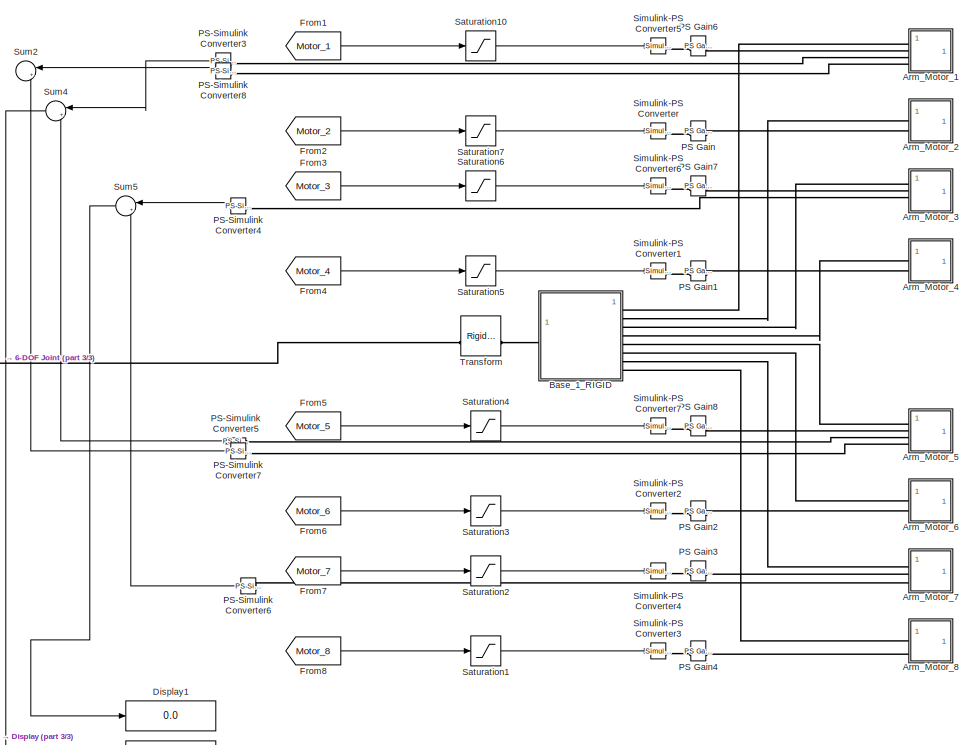
[diagram: root canvas - part 1/3, middle right region]
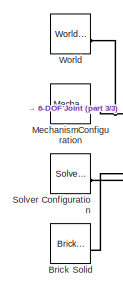
[diagram: root canvas - part 2/3, middle left region]
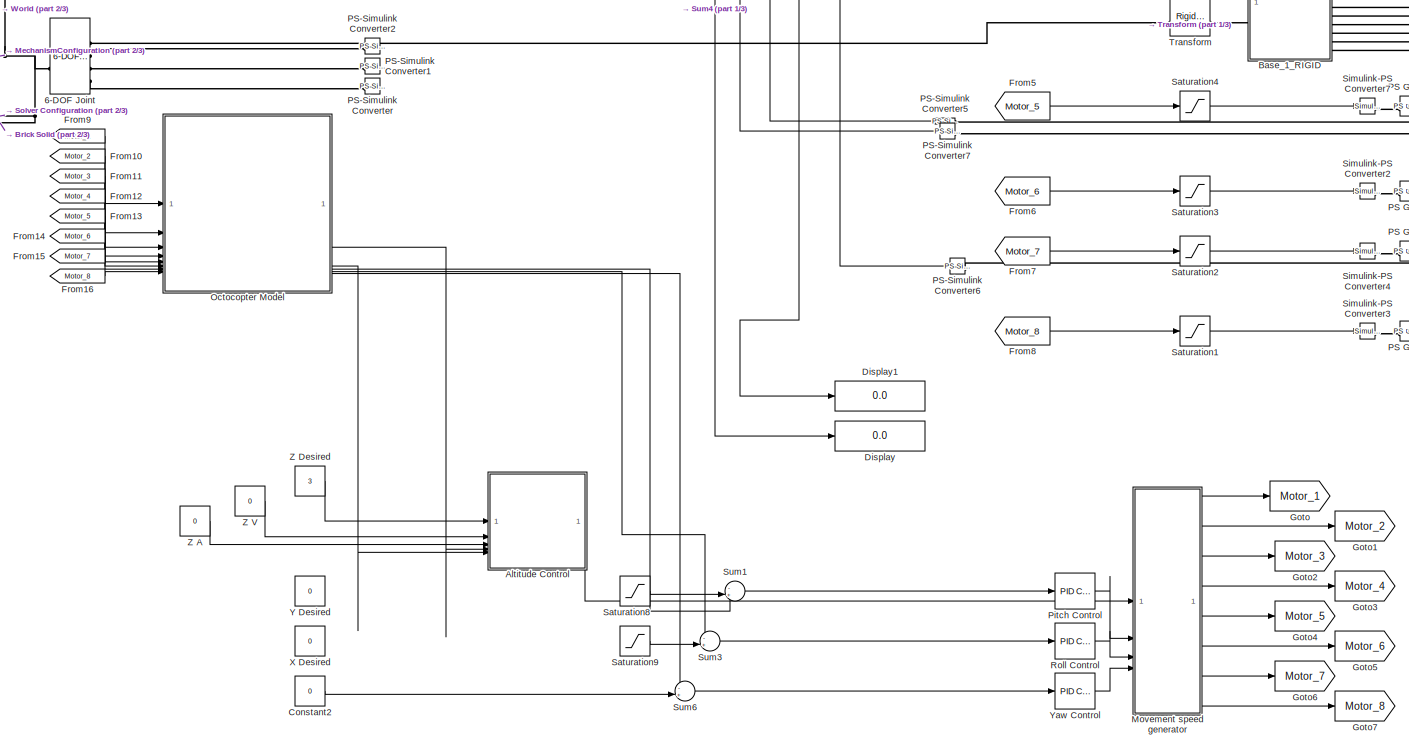
[diagram: root canvas - part 3/3, full width, middle band]
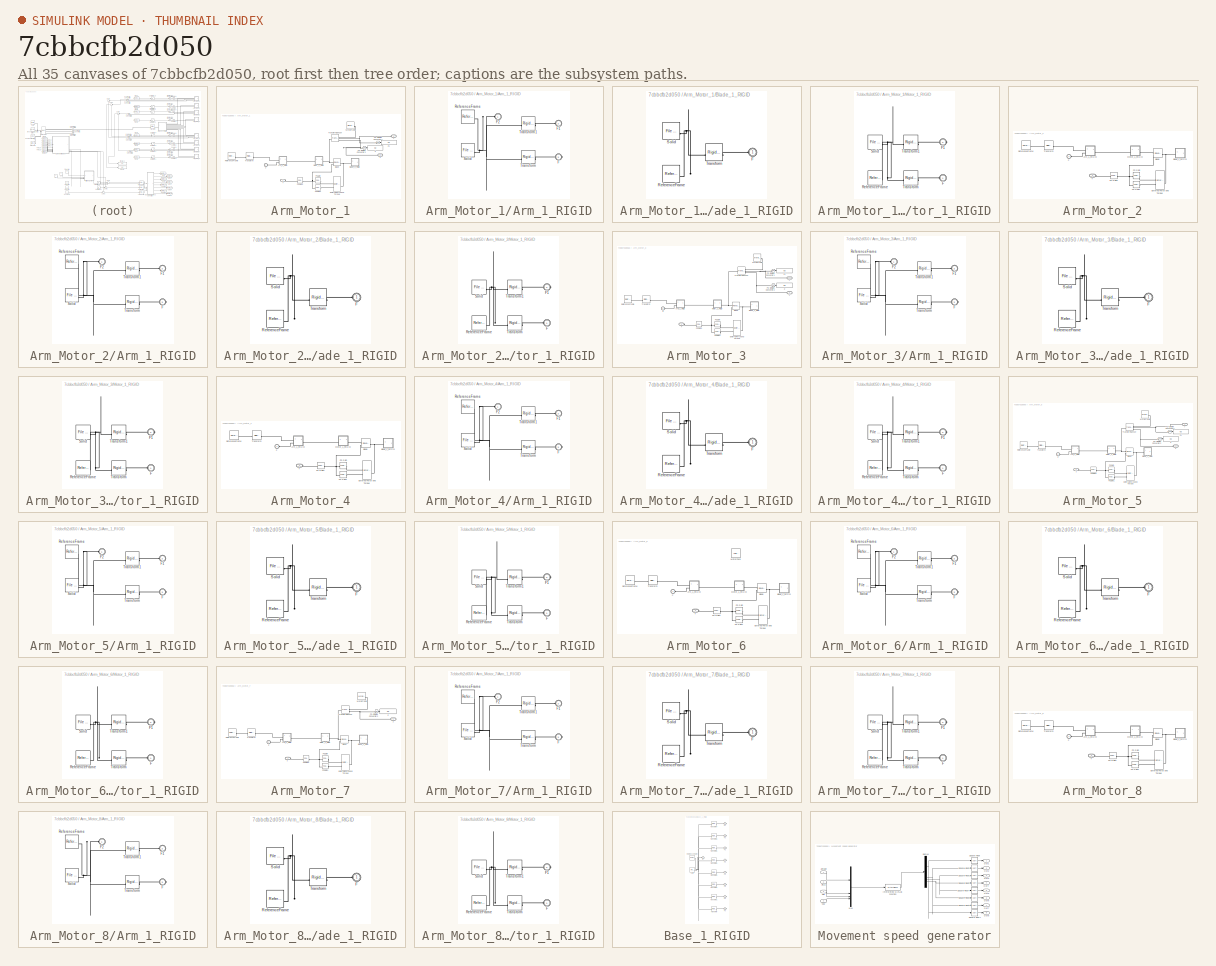
[diagram: thumbnail index - all 35 canvases of the model, root first then tree order]
MODEL slx_7cbbcfb2d050
KIND model
CONFIG AbsTol = auto
CONFIG EnableMultiTasking = off
CONFIG FixedStep = auto
CONFIG MaxStep = auto
CONFIG MinStep = auto
CONFIG RelTol = 1e-3
CONFIG SampleTimeConstraint = Unconstrained
CONFIG SolverName = VariableStepAuto
CONFIG StartTime = 0.0
CONFIG StopTime = 40
WORKSPACE source: external: MATLAB File  (data not in archive)
BLOCK [Reference] 6-DOF Joint  REF=sm_lib/Joints/6-DOF Joint
  SourceBlock = sm_lib/Joints/6-DOF Joint
  SourceType = 6-DOF Joint
BLOCK [SubSystem] Altitude Control
  ReferencedSubsystem = drone_control
  k_D = 0.6
  k_P = 1
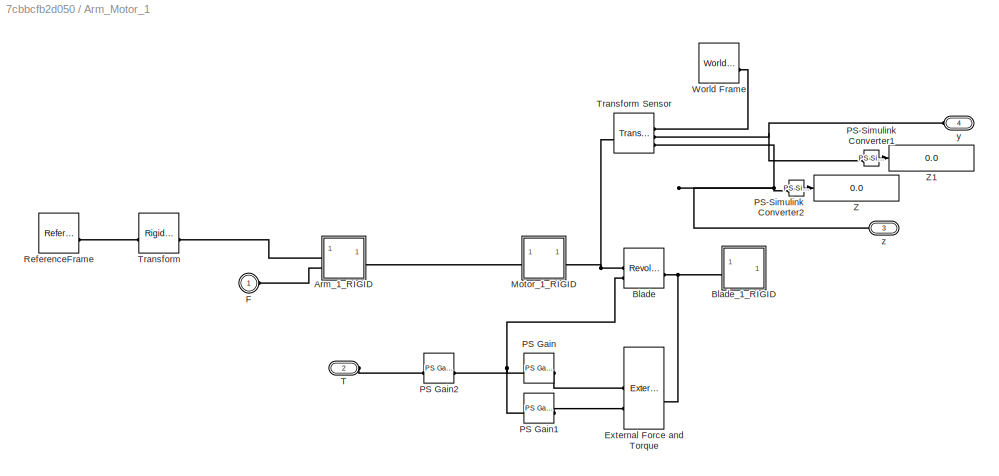
BLOCK [SubSystem] Arm_Motor_1
BLOCK [SubSystem] Arm_Motor_1/Arm_1_RIGID
BLOCK [PMIOPort] Arm_Motor_1/Arm_1_RIGID/F
  Port = 3
  Side = Right
BLOCK [PMIOPort] Arm_Motor_1/Arm_1_RIGID/F1
  Port = 2
  Side = Left
BLOCK [PMIOPort] Arm_Motor_1/Arm_1_RIGID/F2
  Side = Left
BLOCK [Reference] Arm_Motor_1/Arm_1_RIGID/ReferenceFrame  REF=sm_lib/Frames and
Transforms/Reference
Frame
  SourceBlock = sm_lib/Frames and\nTransforms/Reference\nFrame
  SourceType = Reference\nFrame
BLOCK [Reference] Arm_Motor_1/Arm_1_RIGID/Solid  REF=sm_lib/Body Elements/File Solid
  SourceBlock = sm_lib/Body Elements/File Solid
  SourceType = File Solid
BLOCK [Reference] Arm_Motor_1/Arm_1_RIGID/Transform  REF=sm_lib/Frames and
Transforms/Rigid
Transform
  SourceBlock = sm_lib/Frames and\nTransforms/Rigid\nTransform
  SourceType = Rigid\nTransform
BLOCK [Reference] Arm_Motor_1/Arm_1_RIGID/Transform1  REF=sm_lib/Frames and
Transforms/Rigid
Transform
  SourceBlock = sm_lib/Frames and\nTransforms/Rigid\nTransform
  SourceType = Rigid\nTransform
BLOCK [Reference] Arm_Motor_1/Blade  REF=sm_lib/Joints/Revolute Joint
  SourceBlock = sm_lib/Joints/Revolute Joint
  SourceType = Revolute Joint
BLOCK [SubSystem] Arm_Motor_1/Blade_1_RIGID
BLOCK [PMIOPort] Arm_Motor_1/Blade_1_RIGID/F
  Side = Left
BLOCK [Reference] Arm_Motor_1/Blade_1_RIGID/ReferenceFrame  REF=sm_lib/Frames and
Transforms/Reference
Frame
  SourceBlock = sm_lib/Frames and\nTransforms/Reference\nFrame
  SourceType = Reference\nFrame
BLOCK [Reference] Arm_Motor_1/Blade_1_RIGID/Solid  REF=sm_lib/Body Elements/File Solid
  SourceBlock = sm_lib/Body Elements/File Solid
  SourceType = File Solid
BLOCK [Reference] Arm_Motor_1/Blade_1_RIGID/Transform  REF=sm_lib/Frames and
Transforms/Rigid
Transform
  SourceBlock = sm_lib/Frames and\nTransforms/Rigid\nTransform
  SourceType = Rigid\nTransform
BLOCK [Reference] Arm_Motor_1/External Force and Torque  REF=sm_lib/Forces and
Torques/External Force
and Torque
  SourceBlock = sm_lib/Forces and\nTorques/External Force\nand Torque
  SourceType = External Force\nand Torque
BLOCK [PMIOPort] Arm_Motor_1/F
  Side = Left
BLOCK [SubSystem] Arm_Motor_1/Motor_1_RIGID
BLOCK [PMIOPort] Arm_Motor_1/Motor_1_RIGID/F
  Side = Left
BLOCK [PMIOPort] Arm_Motor_1/Motor_1_RIGID/F1
  Port = 2
  Side = Right
BLOCK [Reference] Arm_Motor_1/Motor_1_RIGID/ReferenceFrame  REF=sm_lib/Frames and
Transforms/Reference
Frame
  SourceBlock = sm_lib/Frames and\nTransforms/Reference\nFrame
  SourceType = Reference\nFrame
BLOCK [Reference] Arm_Motor_1/Motor_1_RIGID/Solid  REF=sm_lib/Body Elements/File Solid
  SourceBlock = sm_lib/Body Elements/File Solid
  SourceType = File Solid
BLOCK [Reference] Arm_Motor_1/Motor_1_RIGID/Transform  REF=sm_lib/Frames and
Transforms/Rigid
Transform
  SourceBlock = sm_lib/Frames and\nTransforms/Rigid\nTransform
  SourceType = Rigid\nTransform
BLOCK [Reference] Arm_Motor_1/Motor_1_RIGID/Transform1  REF=sm_lib/Frames and
Transforms/Rigid
Transform
  SourceBlock = sm_lib/Frames and\nTransforms/Rigid\nTransform
  SourceType = Rigid\nTransform
BLOCK [Reference] Arm_Motor_1/PS Gain  REF=fl_lib/Physical Signals/Functions/PS Gain
  SourceBlock = fl_lib/Physical Signals/Functions/PS Gain
  SourceType = PS Gain
BLOCK [Reference] Arm_Motor_1/PS Gain1  REF=fl_lib/Physical Signals/Functions/PS Gain
  SourceBlock = fl_lib/Physical Signals/Functions/PS Gain
  SourceType = PS Gain
BLOCK [Reference] Arm_Motor_1/PS Gain2  REF=fl_lib/Physical Signals/Functions/PS Gain
  SourceBlock = fl_lib/Physical Signals/Functions/PS Gain
  SourceType = PS Gain
BLOCK [Reference] Arm_Motor_1/PS-Simulink Converter1  REF=nesl_utility/PS-Simulink
Converter
  SourceBlock = nesl_utility/PS-Simulink\nConverter
  SourceType = PS-Simulink\nConverter
BLOCK [Reference] Arm_Motor_1/PS-Simulink Converter2  REF=nesl_utility/PS-Simulink
Converter
  SourceBlock = nesl_utility/PS-Simulink\nConverter
  SourceType = PS-Simulink\nConverter
BLOCK [Reference] Arm_Motor_1/ReferenceFrame  REF=sm_lib/Frames and
Transforms/Reference
Frame
  SourceBlock = sm_lib/Frames and\nTransforms/Reference\nFrame
  SourceType = Reference\nFrame
BLOCK [PMIOPort] Arm_Motor_1/T
  Port = 2
  Side = Left
BLOCK [Reference] Arm_Motor_1/Transform  REF=sm_lib/Frames and
Transforms/Rigid
Transform
  SourceBlock = sm_lib/Frames and\nTransforms/Rigid\nTransform
  SourceType = Rigid\nTransform
BLOCK [Reference] Arm_Motor_1/Transform Sensor  REF=sm_lib/Frames and
Transforms/Transform
Sensor
  SourceBlock = sm_lib/Frames and\nTransforms/Transform\nSensor
  SourceType = Transform\nSensor
BLOCK [Reference] Arm_Motor_1/World Frame  REF=sm_lib/Frames and
Transforms/World Frame
  SourceBlock = sm_lib/Frames and\nTransforms/World Frame
  SourceType = World Frame
BLOCK [Display] Arm_Motor_1/Z
  Decimation = 1
BLOCK [Display] Arm_Motor_1/Z1
  Decimation = 1
BLOCK [PMIOPort] Arm_Motor_1/y
  NameLocation = top
  Port = 4
  Side = Left
BLOCK [PMIOPort] Arm_Motor_1/z
  NameLocation = top
  Port = 3
  Side = Left
BLOCK [SubSystem] Arm_Motor_2
BLOCK [SubSystem] Arm_Motor_2/Arm_1_RIGID
BLOCK [PMIOPort] Arm_Motor_2/Arm_1_RIGID/F
  Port = 3
  Side = Right
BLOCK [PMIOPort] Arm_Motor_2/Arm_1_RIGID/F1
  Port = 2
  Side = Left
BLOCK [PMIOPort] Arm_Motor_2/Arm_1_RIGID/F2
  Side = Left
BLOCK [Reference] Arm_Motor_2/Arm_1_RIGID/ReferenceFrame  REF=sm_lib/Frames and
Transforms/Reference
Frame
  SourceBlock = sm_lib/Frames and\nTransforms/Reference\nFrame
  SourceType = Reference\nFrame
BLOCK [Reference] Arm_Motor_2/Arm_1_RIGID/Solid  REF=sm_lib/Body Elements/File Solid
  SourceBlock = sm_lib/Body Elements/File Solid
  SourceType = File Solid
BLOCK [Reference] Arm_Motor_2/Arm_1_RIGID/Transform  REF=sm_lib/Frames and
Transforms/Rigid
Transform
  SourceBlock = sm_lib/Frames and\nTransforms/Rigid\nTransform
  SourceType = Rigid\nTransform
BLOCK [Reference] Arm_Motor_2/Arm_1_RIGID/Transform1  REF=sm_lib/Frames and
Transforms/Rigid
Transform
  SourceBlock = sm_lib/Frames and\nTransforms/Rigid\nTransform
  SourceType = Rigid\nTransform
BLOCK [Reference] Arm_Motor_2/Blade  REF=sm_lib/Joints/Revolute Joint
  SourceBlock = sm_lib/Joints/Revolute Joint
  SourceType = Revolute Joint
BLOCK [SubSystem] Arm_Motor_2/Blade_1_RIGID
BLOCK [PMIOPort] Arm_Motor_2/Blade_1_RIGID/F
  Side = Left
BLOCK [Reference] Arm_Motor_2/Blade_1_RIGID/ReferenceFrame  REF=sm_lib/Frames and
Transforms/Reference
Frame
  SourceBlock = sm_lib/Frames and\nTransforms/Reference\nFrame
  SourceType = Reference\nFrame
BLOCK [Reference] Arm_Motor_2/Blade_1_RIGID/Solid  REF=sm_lib/Body Elements/File Solid
  SourceBlock = sm_lib/Body Elements/File Solid
  SourceType = File Solid
BLOCK [Reference] Arm_Motor_2/Blade_1_RIGID/Transform  REF=sm_lib/Frames and
Transforms/Rigid
Transform
  SourceBlock = sm_lib/Frames and\nTransforms/Rigid\nTransform
  SourceType = Rigid\nTransform
BLOCK [Reference] Arm_Motor_2/External Force and Torque  REF=sm_lib/Forces and
Torques/External Force
and Torque
  SourceBlock = sm_lib/Forces and\nTorques/External Force\nand Torque
  SourceType = External Force\nand Torque
BLOCK [PMIOPort] Arm_Motor_2/F
  Side = Left
BLOCK [SubSystem] Arm_Motor_2/Motor_1_RIGID
BLOCK [PMIOPort] Arm_Motor_2/Motor_1_RIGID/F
  Side = Left
BLOCK [PMIOPort] Arm_Motor_2/Motor_1_RIGID/F1
  Port = 2
  Side = Right
BLOCK [Reference] Arm_Motor_2/Motor_1_RIGID/ReferenceFrame  REF=sm_lib/Frames and
Transforms/Reference
Frame
  SourceBlock = sm_lib/Frames and\nTransforms/Reference\nFrame
  SourceType = Reference\nFrame
BLOCK [Reference] Arm_Motor_2/Motor_1_RIGID/Solid  REF=sm_lib/Body Elements/File Solid
  SourceBlock = sm_lib/Body Elements/File Solid
  SourceType = File Solid
BLOCK [Reference] Arm_Motor_2/Motor_1_RIGID/Transform  REF=sm_lib/Frames and
Transforms/Rigid
Transform
  SourceBlock = sm_lib/Frames and\nTransforms/Rigid\nTransform
  SourceType = Rigid\nTransform
BLOCK [Reference] Arm_Motor_2/Motor_1_RIGID/Transform1  REF=sm_lib/Frames and
Transforms/Rigid
Transform
  SourceBlock = sm_lib/Frames and\nTransforms/Rigid\nTransform
  SourceType = Rigid\nTransform
BLOCK [Reference] Arm_Motor_2/PS Gain  REF=fl_lib/Physical Signals/Functions/PS Gain
  SourceBlock = fl_lib/Physical Signals/Functions/PS Gain
  SourceType = PS Gain
BLOCK [Reference] Arm_Motor_2/PS Gain1  REF=fl_lib/Physical Signals/Functions/PS Gain
  SourceBlock = fl_lib/Physical Signals/Functions/PS Gain
  SourceType = PS Gain
BLOCK [Reference] Arm_Motor_2/PS Gain2  REF=fl_lib/Physical Signals/Functions/PS Gain
  SourceBlock = fl_lib/Physical Signals/Functions/PS Gain
  SourceType = PS Gain
BLOCK [Reference] Arm_Motor_2/ReferenceFrame  REF=sm_lib/Frames and
Transforms/Reference
Frame
  SourceBlock = sm_lib/Frames and\nTransforms/Reference\nFrame
  SourceType = Reference\nFrame
BLOCK [PMIOPort] Arm_Motor_2/T
  Port = 2
  Side = Left
BLOCK [Reference] Arm_Motor_2/Transform  REF=sm_lib/Frames and
Transforms/Rigid
Transform
  SourceBlock = sm_lib/Frames and\nTransforms/Rigid\nTransform
  SourceType = Rigid\nTransform
BLOCK [SubSystem] Arm_Motor_3
BLOCK [SubSystem] Arm_Motor_3/Arm_1_RIGID
BLOCK [PMIOPort] Arm_Motor_3/Arm_1_RIGID/F
  Port = 3
  Side = Right
BLOCK [PMIOPort] Arm_Motor_3/Arm_1_RIGID/F1
  Port = 2
  Side = Left
BLOCK [PMIOPort] Arm_Motor_3/Arm_1_RIGID/F2
  Side = Left
BLOCK [Reference] Arm_Motor_3/Arm_1_RIGID/ReferenceFrame  REF=sm_lib/Frames and
Transforms/Reference
Frame
  SourceBlock = sm_lib/Frames and\nTransforms/Reference\nFrame
  SourceType = Reference\nFrame
BLOCK [Reference] Arm_Motor_3/Arm_1_RIGID/Solid  REF=sm_lib/Body Elements/File Solid
  SourceBlock = sm_lib/Body Elements/File Solid
  SourceType = File Solid
BLOCK [Reference] Arm_Motor_3/Arm_1_RIGID/Transform  REF=sm_lib/Frames and
Transforms/Rigid
Transform
  SourceBlock = sm_lib/Frames and\nTransforms/Rigid\nTransform
  SourceType = Rigid\nTransform
BLOCK [Reference] Arm_Motor_3/Arm_1_RIGID/Transform1  REF=sm_lib/Frames and
Transforms/Rigid
Transform
  SourceBlock = sm_lib/Frames and\nTransforms/Rigid\nTransform
  SourceType = Rigid\nTransform
BLOCK [Reference] Arm_Motor_3/Blade  REF=sm_lib/Joints/Revolute Joint
  SourceBlock = sm_lib/Joints/Revolute Joint
  SourceType = Revolute Joint
BLOCK [SubSystem] Arm_Motor_3/Blade_1_RIGID
BLOCK [PMIOPort] Arm_Motor_3/Blade_1_RIGID/F
  Side = Left
BLOCK [Reference] Arm_Motor_3/Blade_1_RIGID/ReferenceFrame  REF=sm_lib/Frames and
Transforms/Reference
Frame
  SourceBlock = sm_lib/Frames and\nTransforms/Reference\nFrame
  SourceType = Reference\nFrame
BLOCK [Reference] Arm_Motor_3/Blade_1_RIGID/Solid  REF=sm_lib/Body Elements/File Solid
  SourceBlock = sm_lib/Body Elements/File Solid
  SourceType = File Solid
BLOCK [Reference] Arm_Motor_3/Blade_1_RIGID/Transform  REF=sm_lib/Frames and
Transforms/Rigid
Transform
  SourceBlock = sm_lib/Frames and\nTransforms/Rigid\nTransform
  SourceType = Rigid\nTransform
BLOCK [Reference] Arm_Motor_3/External Force and Torque  REF=sm_lib/Forces and
Torques/External Force
and Torque
  SourceBlock = sm_lib/Forces and\nTorques/External Force\nand Torque
  SourceType = External Force\nand Torque
BLOCK [PMIOPort] Arm_Motor_3/F
  Side = Left
BLOCK [SubSystem] Arm_Motor_3/Motor_1_RIGID
BLOCK [PMIOPort] Arm_Motor_3/Motor_1_RIGID/F
  Side = Left
BLOCK [PMIOPort] Arm_Motor_3/Motor_1_RIGID/F1
  Port = 2
  Side = Right
BLOCK [Reference] Arm_Motor_3/Motor_1_RIGID/ReferenceFrame  REF=sm_lib/Frames and
Transforms/Reference
Frame
  SourceBlock = sm_lib/Frames and\nTransforms/Reference\nFrame
  SourceType = Reference\nFrame
BLOCK [Reference] Arm_Motor_3/Motor_1_RIGID/Solid  REF=sm_lib/Body Elements/File Solid
  SourceBlock = sm_lib/Body Elements/File Solid
  SourceType = File Solid
BLOCK [Reference] Arm_Motor_3/Motor_1_RIGID/Transform  REF=sm_lib/Frames and
Transforms/Rigid
Transform
  SourceBlock = sm_lib/Frames and\nTransforms/Rigid\nTransform
  SourceType = Rigid\nTransform
BLOCK [Reference] Arm_Motor_3/Motor_1_RIGID/Transform1  REF=sm_lib/Frames and
Transforms/Rigid
Transform
  SourceBlock = sm_lib/Frames and\nTransforms/Rigid\nTransform
  SourceType = Rigid\nTransform
BLOCK [Reference] Arm_Motor_3/PS Gain  REF=fl_lib/Physical Signals/Functions/PS Gain
  SourceBlock = fl_lib/Physical Signals/Functions/PS Gain
  SourceType = PS Gain
BLOCK [Reference] Arm_Motor_3/PS Gain1  REF=fl_lib/Physical Signals/Functions/PS Gain
  SourceBlock = fl_lib/Physical Signals/Functions/PS Gain
  SourceType = PS Gain
BLOCK [Reference] Arm_Motor_3/PS Gain2  REF=fl_lib/Physical Signals/Functions/PS Gain
  SourceBlock = fl_lib/Physical Signals/Functions/PS Gain
  SourceType = PS Gain
BLOCK [Reference] Arm_Motor_3/PS-Simulink Converter1  REF=nesl_utility/PS-Simulink
Converter
  SourceBlock = nesl_utility/PS-Simulink\nConverter
  SourceType = PS-Simulink\nConverter
BLOCK [Reference] Arm_Motor_3/PS-Simulink Converter2  REF=nesl_utility/PS-Simulink
Converter
  SourceBlock = nesl_utility/PS-Simulink\nConverter
  SourceType = PS-Simulink\nConverter
BLOCK [Reference] Arm_Motor_3/ReferenceFrame  REF=sm_lib/Frames and
Transforms/Reference
Frame
  SourceBlock = sm_lib/Frames and\nTransforms/Reference\nFrame
  SourceType = Reference\nFrame
BLOCK [PMIOPort] Arm_Motor_3/T
  Port = 2
  Side = Left
BLOCK [Reference] Arm_Motor_3/Transform  REF=sm_lib/Frames and
Transforms/Rigid
Transform
  SourceBlock = sm_lib/Frames and\nTransforms/Rigid\nTransform
  SourceType = Rigid\nTransform
BLOCK [Reference] Arm_Motor_3/Transform Sensor  REF=sm_lib/Frames and
Transforms/Transform
Sensor
  SourceBlock = sm_lib/Frames and\nTransforms/Transform\nSensor
  SourceType = Transform\nSensor
BLOCK [Reference] Arm_Motor_3/World Frame  REF=sm_lib/Frames and
Transforms/World Frame
  SourceBlock = sm_lib/Frames and\nTransforms/World Frame
  SourceType = World Frame
BLOCK [Display] Arm_Motor_3/Z
  Decimation = 1
BLOCK [Display] Arm_Motor_3/Z1
  Decimation = 1
BLOCK [PMIOPort] Arm_Motor_3/y
  NameLocation = top
  Port = 4
  Side = Left
BLOCK [PMIOPort] Arm_Motor_3/z
  NameLocation = top
  Port = 3
  Side = Left
BLOCK [SubSystem] Arm_Motor_4
BLOCK [SubSystem] Arm_Motor_4/Arm_1_RIGID
BLOCK [PMIOPort] Arm_Motor_4/Arm_1_RIGID/F
  Port = 3
  Side = Right
BLOCK [PMIOPort] Arm_Motor_4/Arm_1_RIGID/F1
  Port = 2
  Side = Left
BLOCK [PMIOPort] Arm_Motor_4/Arm_1_RIGID/F2
  Side = Left
BLOCK [Reference] Arm_Motor_4/Arm_1_RIGID/ReferenceFrame  REF=sm_lib/Frames and
Transforms/Reference
Frame
  SourceBlock = sm_lib/Frames and\nTransforms/Reference\nFrame
  SourceType = Reference\nFrame
BLOCK [Reference] Arm_Motor_4/Arm_1_RIGID/Solid  REF=sm_lib/Body Elements/File Solid
  SourceBlock = sm_lib/Body Elements/File Solid
  SourceType = File Solid
BLOCK [Reference] Arm_Motor_4/Arm_1_RIGID/Transform  REF=sm_lib/Frames and
Transforms/Rigid
Transform
  SourceBlock = sm_lib/Frames and\nTransforms/Rigid\nTransform
  SourceType = Rigid\nTransform
BLOCK [Reference] Arm_Motor_4/Arm_1_RIGID/Transform1  REF=sm_lib/Frames and
Transforms/Rigid
Transform
  SourceBlock = sm_lib/Frames and\nTransforms/Rigid\nTransform
  SourceType = Rigid\nTransform
BLOCK [Reference] Arm_Motor_4/Blade  REF=sm_lib/Joints/Revolute Joint
  SourceBlock = sm_lib/Joints/Revolute Joint
  SourceType = Revolute Joint
BLOCK [SubSystem] Arm_Motor_4/Blade_1_RIGID
BLOCK [PMIOPort] Arm_Motor_4/Blade_1_RIGID/F
  Side = Left
BLOCK [Reference] Arm_Motor_4/Blade_1_RIGID/ReferenceFrame  REF=sm_lib/Frames and
Transforms/Reference
Frame
  SourceBlock = sm_lib/Frames and\nTransforms/Reference\nFrame
  SourceType = Reference\nFrame
BLOCK [Reference] Arm_Motor_4/Blade_1_RIGID/Solid  REF=sm_lib/Body Elements/File Solid
  SourceBlock = sm_lib/Body Elements/File Solid
  SourceType = File Solid
BLOCK [Reference] Arm_Motor_4/Blade_1_RIGID/Transform  REF=sm_lib/Frames and
Transforms/Rigid
Transform
  SourceBlock = sm_lib/Frames and\nTransforms/Rigid\nTransform
  SourceType = Rigid\nTransform
BLOCK [Reference] Arm_Motor_4/External Force and Torque  REF=sm_lib/Forces and
Torques/External Force
and Torque
  SourceBlock = sm_lib/Forces and\nTorques/External Force\nand Torque
  SourceType = External Force\nand Torque
BLOCK [PMIOPort] Arm_Motor_4/F
  Side = Left
BLOCK [SubSystem] Arm_Motor_4/Motor_1_RIGID
BLOCK [PMIOPort] Arm_Motor_4/Motor_1_RIGID/F
  Side = Left
BLOCK [PMIOPort] Arm_Motor_4/Motor_1_RIGID/F1
  Port = 2
  Side = Right
BLOCK [Reference] Arm_Motor_4/Motor_1_RIGID/ReferenceFrame  REF=sm_lib/Frames and
Transforms/Reference
Frame
  SourceBlock = sm_lib/Frames and\nTransforms/Reference\nFrame
  SourceType = Reference\nFrame
BLOCK [Reference] Arm_Motor_4/Motor_1_RIGID/Solid  REF=sm_lib/Body Elements/File Solid
  SourceBlock = sm_lib/Body Elements/File Solid
  SourceType = File Solid
BLOCK [Reference] Arm_Motor_4/Motor_1_RIGID/Transform  REF=sm_lib/Frames and
Transforms/Rigid
Transform
  SourceBlock = sm_lib/Frames and\nTransforms/Rigid\nTransform
  SourceType = Rigid\nTransform
BLOCK [Reference] Arm_Motor_4/Motor_1_RIGID/Transform1  REF=sm_lib/Frames and
Transforms/Rigid
Transform
  SourceBlock = sm_lib/Frames and\nTransforms/Rigid\nTransform
  SourceType = Rigid\nTransform
BLOCK [Reference] Arm_Motor_4/PS Gain  REF=fl_lib/Physical Signals/Functions/PS Gain
  SourceBlock = fl_lib/Physical Signals/Functions/PS Gain
  SourceType = PS Gain
BLOCK [Reference] Arm_Motor_4/PS Gain1  REF=fl_lib/Physical Signals/Functions/PS Gain
  SourceBlock = fl_lib/Physical Signals/Functions/PS Gain
  SourceType = PS Gain
BLOCK [Reference] Arm_Motor_4/PS Gain2  REF=fl_lib/Physical Signals/Functions/PS Gain
  SourceBlock = fl_lib/Physical Signals/Functions/PS Gain
  SourceType = PS Gain
BLOCK [Reference] Arm_Motor_4/ReferenceFrame  REF=sm_lib/Frames and
Transforms/Reference
Frame
  SourceBlock = sm_lib/Frames and\nTransforms/Reference\nFrame
  SourceType = Reference\nFrame
BLOCK [PMIOPort] Arm_Motor_4/T
  Port = 2
  Side = Left
BLOCK [Reference] Arm_Motor_4/Transform  REF=sm_lib/Frames and
Transforms/Rigid
Transform
  SourceBlock = sm_lib/Frames and\nTransforms/Rigid\nTransform
  SourceType = Rigid\nTransform
BLOCK [SubSystem] Arm_Motor_5
BLOCK [SubSystem] Arm_Motor_5/Arm_1_RIGID
BLOCK [PMIOPort] Arm_Motor_5/Arm_1_RIGID/F
  Port = 3
  Side = Right
BLOCK [PMIOPort] Arm_Motor_5/Arm_1_RIGID/F1
  Port = 2
  Side = Left
BLOCK [PMIOPort] Arm_Motor_5/Arm_1_RIGID/F2
  Side = Left
BLOCK [Reference] Arm_Motor_5/Arm_1_RIGID/ReferenceFrame  REF=sm_lib/Frames and
Transforms/Reference
Frame
  SourceBlock = sm_lib/Frames and\nTransforms/Reference\nFrame
  SourceType = Reference\nFrame
BLOCK [Reference] Arm_Motor_5/Arm_1_RIGID/Solid  REF=sm_lib/Body Elements/File Solid
  SourceBlock = sm_lib/Body Elements/File Solid
  SourceType = File Solid
BLOCK [Reference] Arm_Motor_5/Arm_1_RIGID/Transform  REF=sm_lib/Frames and
Transforms/Rigid
Transform
  SourceBlock = sm_lib/Frames and\nTransforms/Rigid\nTransform
  SourceType = Rigid\nTransform
BLOCK [Reference] Arm_Motor_5/Arm_1_RIGID/Transform1  REF=sm_lib/Frames and
Transforms/Rigid
Transform
  SourceBlock = sm_lib/Frames and\nTransforms/Rigid\nTransform
  SourceType = Rigid\nTransform
BLOCK [Reference] Arm_Motor_5/Blade  REF=sm_lib/Joints/Revolute Joint
  SourceBlock = sm_lib/Joints/Revolute Joint
  SourceType = Revolute Joint
BLOCK [SubSystem] Arm_Motor_5/Blade_1_RIGID
BLOCK [PMIOPort] Arm_Motor_5/Blade_1_RIGID/F
  Side = Left
BLOCK [Reference] Arm_Motor_5/Blade_1_RIGID/ReferenceFrame  REF=sm_lib/Frames and
Transforms/Reference
Frame
  SourceBlock = sm_lib/Frames and\nTransforms/Reference\nFrame
  SourceType = Reference\nFrame
BLOCK [Reference] Arm_Motor_5/Blade_1_RIGID/Solid  REF=sm_lib/Body Elements/File Solid
  SourceBlock = sm_lib/Body Elements/File Solid
  SourceType = File Solid
BLOCK [Reference] Arm_Motor_5/Blade_1_RIGID/Transform  REF=sm_lib/Frames and
Transforms/Rigid
Transform
  SourceBlock = sm_lib/Frames and\nTransforms/Rigid\nTransform
  SourceType = Rigid\nTransform
BLOCK [Reference] Arm_Motor_5/External Force and Torque  REF=sm_lib/Forces and
Torques/External Force
and Torque
  SourceBlock = sm_lib/Forces and\nTorques/External Force\nand Torque
  SourceType = External Force\nand Torque
BLOCK [PMIOPort] Arm_Motor_5/F
  Side = Left
BLOCK [SubSystem] Arm_Motor_5/Motor_1_RIGID
BLOCK [PMIOPort] Arm_Motor_5/Motor_1_RIGID/F
  Side = Left
BLOCK [PMIOPort] Arm_Motor_5/Motor_1_RIGID/F1
  Port = 2
  Side = Right
BLOCK [Reference] Arm_Motor_5/Motor_1_RIGID/ReferenceFrame  REF=sm_lib/Frames and
Transforms/Reference
Frame
  SourceBlock = sm_lib/Frames and\nTransforms/Reference\nFrame
  SourceType = Reference\nFrame
BLOCK [Reference] Arm_Motor_5/Motor_1_RIGID/Solid  REF=sm_lib/Body Elements/File Solid
  SourceBlock = sm_lib/Body Elements/File Solid
  SourceType = File Solid
BLOCK [Reference] Arm_Motor_5/Motor_1_RIGID/Transform  REF=sm_lib/Frames and
Transforms/Rigid
Transform
  SourceBlock = sm_lib/Frames and\nTransforms/Rigid\nTransform
  SourceType = Rigid\nTransform
BLOCK [Reference] Arm_Motor_5/Motor_1_RIGID/Transform1  REF=sm_lib/Frames and
Transforms/Rigid
Transform
  SourceBlock = sm_lib/Frames and\nTransforms/Rigid\nTransform
  SourceType = Rigid\nTransform
BLOCK [Reference] Arm_Motor_5/PS Gain  REF=fl_lib/Physical Signals/Functions/PS Gain
  SourceBlock = fl_lib/Physical Signals/Functions/PS Gain
  SourceType = PS Gain
BLOCK [Reference] Arm_Motor_5/PS Gain1  REF=fl_lib/Physical Signals/Functions/PS Gain
  SourceBlock = fl_lib/Physical Signals/Functions/PS Gain
  SourceType = PS Gain
BLOCK [Reference] Arm_Motor_5/PS Gain2  REF=fl_lib/Physical Signals/Functions/PS Gain
  SourceBlock = fl_lib/Physical Signals/Functions/PS Gain
  SourceType = PS Gain
BLOCK [Reference] Arm_Motor_5/PS-Simulink Converter1  REF=nesl_utility/PS-Simulink
Converter
  SourceBlock = nesl_utility/PS-Simulink\nConverter
  SourceType = PS-Simulink\nConverter
BLOCK [Reference] Arm_Motor_5/PS-Simulink Converter2  REF=nesl_utility/PS-Simulink
Converter
  SourceBlock = nesl_utility/PS-Simulink\nConverter
  SourceType = PS-Simulink\nConverter
BLOCK [Reference] Arm_Motor_5/ReferenceFrame  REF=sm_lib/Frames and
Transforms/Reference
Frame
  SourceBlock = sm_lib/Frames and\nTransforms/Reference\nFrame
  SourceType = Reference\nFrame
BLOCK [PMIOPort] Arm_Motor_5/T
  Port = 2
  Side = Left
BLOCK [Reference] Arm_Motor_5/Transform  REF=sm_lib/Frames and
Transforms/Rigid
Transform
  SourceBlock = sm_lib/Frames and\nTransforms/Rigid\nTransform
  SourceType = Rigid\nTransform
BLOCK [Reference] Arm_Motor_5/Transform Sensor  REF=sm_lib/Frames and
Transforms/Transform
Sensor
  SourceBlock = sm_lib/Frames and\nTransforms/Transform\nSensor
  SourceType = Transform\nSensor
BLOCK [Reference] Arm_Motor_5/World Frame  REF=sm_lib/Frames and
Transforms/World Frame
  SourceBlock = sm_lib/Frames and\nTransforms/World Frame
  SourceType = World Frame
BLOCK [Display] Arm_Motor_5/Z
  Decimation = 1
BLOCK [Display] Arm_Motor_5/Z1
  Decimation = 1
BLOCK [PMIOPort] Arm_Motor_5/y
  NameLocation = top
  Port = 4
  Side = Left
BLOCK [PMIOPort] Arm_Motor_5/z
  NameLocation = top
  Port = 3
  Side = Left
BLOCK [SubSystem] Arm_Motor_6
BLOCK [SubSystem] Arm_Motor_6/Arm_1_RIGID
BLOCK [PMIOPort] Arm_Motor_6/Arm_1_RIGID/F
  Port = 3
  Side = Right
BLOCK [PMIOPort] Arm_Motor_6/Arm_1_RIGID/F1
  Port = 2
  Side = Left
BLOCK [PMIOPort] Arm_Motor_6/Arm_1_RIGID/F2
  Side = Left
BLOCK [Reference] Arm_Motor_6/Arm_1_RIGID/ReferenceFrame  REF=sm_lib/Frames and
Transforms/Reference
Frame
  SourceBlock = sm_lib/Frames and\nTransforms/Reference\nFrame
  SourceType = Reference\nFrame
BLOCK [Reference] Arm_Motor_6/Arm_1_RIGID/Solid  REF=sm_lib/Body Elements/File Solid
  SourceBlock = sm_lib/Body Elements/File Solid
  SourceType = File Solid
BLOCK [Reference] Arm_Motor_6/Arm_1_RIGID/Transform  REF=sm_lib/Frames and
Transforms/Rigid
Transform
  SourceBlock = sm_lib/Frames and\nTransforms/Rigid\nTransform
  SourceType = Rigid\nTransform
BLOCK [Reference] Arm_Motor_6/Arm_1_RIGID/Transform1  REF=sm_lib/Frames and
Transforms/Rigid
Transform
  SourceBlock = sm_lib/Frames and\nTransforms/Rigid\nTransform
  SourceType = Rigid\nTransform
BLOCK [Reference] Arm_Motor_6/Blade  REF=sm_lib/Joints/Revolute Joint
  SourceBlock = sm_lib/Joints/Revolute Joint
  SourceType = Revolute Joint
BLOCK [SubSystem] Arm_Motor_6/Blade_1_RIGID
BLOCK [PMIOPort] Arm_Motor_6/Blade_1_RIGID/F
  Side = Left
BLOCK [Reference] Arm_Motor_6/Blade_1_RIGID/ReferenceFrame  REF=sm_lib/Frames and
Transforms/Reference
Frame
  SourceBlock = sm_lib/Frames and\nTransforms/Reference\nFrame
  SourceType = Reference\nFrame
BLOCK [Reference] Arm_Motor_6/Blade_1_RIGID/Solid  REF=sm_lib/Body Elements/File Solid
  SourceBlock = sm_lib/Body Elements/File Solid
  SourceType = File Solid
BLOCK [Reference] Arm_Motor_6/Blade_1_RIGID/Transform  REF=sm_lib/Frames and
Transforms/Rigid
Transform
  SourceBlock = sm_lib/Frames and\nTransforms/Rigid\nTransform
  SourceType = Rigid\nTransform
BLOCK [Reference] Arm_Motor_6/External Force and Torque  REF=sm_lib/Forces and
Torques/External Force
and Torque
  SourceBlock = sm_lib/Forces and\nTorques/External Force\nand Torque
  SourceType = External Force\nand Torque
BLOCK [PMIOPort] Arm_Motor_6/F
  Side = Left
BLOCK [Reference] Arm_Motor_6/MotorFace  REF=sm_lib/Joints/Cylindrical
Joint
  SourceBlock = sm_lib/Joints/Cylindrical\nJoint
  SourceType = Cylindrical\nJoint
BLOCK [SubSystem] Arm_Motor_6/Motor_1_RIGID
BLOCK [PMIOPort] Arm_Motor_6/Motor_1_RIGID/F
  Side = Left
BLOCK [PMIOPort] Arm_Motor_6/Motor_1_RIGID/F1
  Port = 2
  Side = Right
BLOCK [Reference] Arm_Motor_6/Motor_1_RIGID/ReferenceFrame  REF=sm_lib/Frames and
Transforms/Reference
Frame
  SourceBlock = sm_lib/Frames and\nTransforms/Reference\nFrame
  SourceType = Reference\nFrame
BLOCK [Reference] Arm_Motor_6/Motor_1_RIGID/Solid  REF=sm_lib/Body Elements/File Solid
  SourceBlock = sm_lib/Body Elements/File Solid
  SourceType = File Solid
BLOCK [Reference] Arm_Motor_6/Motor_1_RIGID/Transform  REF=sm_lib/Frames and
Transforms/Rigid
Transform
  SourceBlock = sm_lib/Frames and\nTransforms/Rigid\nTransform
  SourceType = Rigid\nTransform
BLOCK [Reference] Arm_Motor_6/Motor_1_RIGID/Transform1  REF=sm_lib/Frames and
Transforms/Rigid
Transform
  SourceBlock = sm_lib/Frames and\nTransforms/Rigid\nTransform
  SourceType = Rigid\nTransform
BLOCK [Reference] Arm_Motor_6/PS Gain  REF=fl_lib/Physical Signals/Functions/PS Gain
  SourceBlock = fl_lib/Physical Signals/Functions/PS Gain
  SourceType = PS Gain
BLOCK [Reference] Arm_Motor_6/PS Gain1  REF=fl_lib/Physical Signals/Functions/PS Gain
  SourceBlock = fl_lib/Physical Signals/Functions/PS Gain
  SourceType = PS Gain
BLOCK [Reference] Arm_Motor_6/PS Gain2  REF=fl_lib/Physical Signals/Functions/PS Gain
  SourceBlock = fl_lib/Physical Signals/Functions/PS Gain
  SourceType = PS Gain
BLOCK [Reference] Arm_Motor_6/ReferenceFrame  REF=sm_lib/Frames and
Transforms/Reference
Frame
  SourceBlock = sm_lib/Frames and\nTransforms/Reference\nFrame
  SourceType = Reference\nFrame
BLOCK [PMIOPort] Arm_Motor_6/T
  Port = 2
  Side = Left
BLOCK [Reference] Arm_Motor_6/Transform  REF=sm_lib/Frames and
Transforms/Rigid
Transform
  SourceBlock = sm_lib/Frames and\nTransforms/Rigid\nTransform
  SourceType = Rigid\nTransform
BLOCK [SubSystem] Arm_Motor_7
BLOCK [SubSystem] Arm_Motor_7/Arm_1_RIGID
BLOCK [PMIOPort] Arm_Motor_7/Arm_1_RIGID/F
  Port = 3
  Side = Right
BLOCK [PMIOPort] Arm_Motor_7/Arm_1_RIGID/F1
  Port = 2
  Side = Left
BLOCK [PMIOPort] Arm_Motor_7/Arm_1_RIGID/F2
  Side = Left
BLOCK [Reference] Arm_Motor_7/Arm_1_RIGID/ReferenceFrame  REF=sm_lib/Frames and
Transforms/Reference
Frame
  SourceBlock = sm_lib/Frames and\nTransforms/Reference\nFrame
  SourceType = Reference\nFrame
BLOCK [Reference] Arm_Motor_7/Arm_1_RIGID/Solid  REF=sm_lib/Body Elements/File Solid
  SourceBlock = sm_lib/Body Elements/File Solid
  SourceType = File Solid
BLOCK [Reference] Arm_Motor_7/Arm_1_RIGID/Transform  REF=sm_lib/Frames and
Transforms/Rigid
Transform
  SourceBlock = sm_lib/Frames and\nTransforms/Rigid\nTransform
  SourceType = Rigid\nTransform
BLOCK [Reference] Arm_Motor_7/Arm_1_RIGID/Transform1  REF=sm_lib/Frames and
Transforms/Rigid
Transform
  SourceBlock = sm_lib/Frames and\nTransforms/Rigid\nTransform
  SourceType = Rigid\nTransform
BLOCK [Reference] Arm_Motor_7/Blade  REF=sm_lib/Joints/Revolute Joint
  SourceBlock = sm_lib/Joints/Revolute Joint
  SourceType = Revolute Joint
BLOCK [SubSystem] Arm_Motor_7/Blade_1_RIGID
BLOCK [PMIOPort] Arm_Motor_7/Blade_1_RIGID/F
  Side = Left
BLOCK [Reference] Arm_Motor_7/Blade_1_RIGID/ReferenceFrame  REF=sm_lib/Frames and
Transforms/Reference
Frame
  SourceBlock = sm_lib/Frames and\nTransforms/Reference\nFrame
  SourceType = Reference\nFrame
BLOCK [Reference] Arm_Motor_7/Blade_1_RIGID/Solid  REF=sm_lib/Body Elements/File Solid
  SourceBlock = sm_lib/Body Elements/File Solid
  SourceType = File Solid
BLOCK [Reference] Arm_Motor_7/Blade_1_RIGID/Transform  REF=sm_lib/Frames and
Transforms/Rigid
Transform
  SourceBlock = sm_lib/Frames and\nTransforms/Rigid\nTransform
  SourceType = Rigid\nTransform
BLOCK [Reference] Arm_Motor_7/External Force and Torque  REF=sm_lib/Forces and
Torques/External Force
and Torque
  SourceBlock = sm_lib/Forces and\nTorques/External Force\nand Torque
  SourceType = External Force\nand Torque
BLOCK [PMIOPort] Arm_Motor_7/F
  Side = Left
BLOCK [SubSystem] Arm_Motor_7/Motor_1_RIGID
BLOCK [PMIOPort] Arm_Motor_7/Motor_1_RIGID/F
  Side = Left
BLOCK [PMIOPort] Arm_Motor_7/Motor_1_RIGID/F1
  Port = 2
  Side = Right
BLOCK [Reference] Arm_Motor_7/Motor_1_RIGID/ReferenceFrame  REF=sm_lib/Frames and
Transforms/Reference
Frame
  SourceBlock = sm_lib/Frames and\nTransforms/Reference\nFrame
  SourceType = Reference\nFrame
BLOCK [Reference] Arm_Motor_7/Motor_1_RIGID/Solid  REF=sm_lib/Body Elements/File Solid
  SourceBlock = sm_lib/Body Elements/File Solid
  SourceType = File Solid
BLOCK [Reference] Arm_Motor_7/Motor_1_RIGID/Transform  REF=sm_lib/Frames and
Transforms/Rigid
Transform
  SourceBlock = sm_lib/Frames and\nTransforms/Rigid\nTransform
  SourceType = Rigid\nTransform
BLOCK [Reference] Arm_Motor_7/Motor_1_RIGID/Transform1  REF=sm_lib/Frames and
Transforms/Rigid
Transform
  SourceBlock = sm_lib/Frames and\nTransforms/Rigid\nTransform
  SourceType = Rigid\nTransform
BLOCK [Reference] Arm_Motor_7/PS Gain  REF=fl_lib/Physical Signals/Functions/PS Gain
  SourceBlock = fl_lib/Physical Signals/Functions/PS Gain
  SourceType = PS Gain
BLOCK [Reference] Arm_Motor_7/PS Gain1  REF=fl_lib/Physical Signals/Functions/PS Gain
  SourceBlock = fl_lib/Physical Signals/Functions/PS Gain
  SourceType = PS Gain
BLOCK [Reference] Arm_Motor_7/PS Gain2  REF=fl_lib/Physical Signals/Functions/PS Gain
  SourceBlock = fl_lib/Physical Signals/Functions/PS Gain
  SourceType = PS Gain
BLOCK [Reference] Arm_Motor_7/PS-Simulink Converter2  REF=nesl_utility/PS-Simulink
Converter
  SourceBlock = nesl_utility/PS-Simulink\nConverter
  SourceType = PS-Simulink\nConverter
BLOCK [Reference] Arm_Motor_7/ReferenceFrame  REF=sm_lib/Frames and
Transforms/Reference
Frame
  SourceBlock = sm_lib/Frames and\nTransforms/Reference\nFrame
  SourceType = Reference\nFrame
BLOCK [PMIOPort] Arm_Motor_7/T
  Port = 2
  Side = Left
BLOCK [Reference] Arm_Motor_7/Transform  REF=sm_lib/Frames and
Transforms/Rigid
Transform
  SourceBlock = sm_lib/Frames and\nTransforms/Rigid\nTransform
  SourceType = Rigid\nTransform
BLOCK [Reference] Arm_Motor_7/Transform Sensor  REF=sm_lib/Frames and
Transforms/Transform
Sensor
  SourceBlock = sm_lib/Frames and\nTransforms/Transform\nSensor
  SourceType = Transform\nSensor
BLOCK [Reference] Arm_Motor_7/World Frame  REF=sm_lib/Frames and
Transforms/World Frame
  SourceBlock = sm_lib/Frames and\nTransforms/World Frame
  SourceType = World Frame
BLOCK [Display] Arm_Motor_7/Z
  Decimation = 1
BLOCK [PMIOPort] Arm_Motor_7/z
  NameLocation = top
  Port = 3
  Side = Left
BLOCK [SubSystem] Arm_Motor_8
BLOCK [SubSystem] Arm_Motor_8/Arm_1_RIGID
BLOCK [PMIOPort] Arm_Motor_8/Arm_1_RIGID/F
  Port = 3
  Side = Right
BLOCK [PMIOPort] Arm_Motor_8/Arm_1_RIGID/F1
  Port = 2
  Side = Left
BLOCK [PMIOPort] Arm_Motor_8/Arm_1_RIGID/F2
  Side = Left
BLOCK [Reference] Arm_Motor_8/Arm_1_RIGID/ReferenceFrame  REF=sm_lib/Frames and
Transforms/Reference
Frame
  SourceBlock = sm_lib/Frames and\nTransforms/Reference\nFrame
  SourceType = Reference\nFrame
BLOCK [Reference] Arm_Motor_8/Arm_1_RIGID/Solid  REF=sm_lib/Body Elements/File Solid
  SourceBlock = sm_lib/Body Elements/File Solid
  SourceType = File Solid
BLOCK [Reference] Arm_Motor_8/Arm_1_RIGID/Transform  REF=sm_lib/Frames and
Transforms/Rigid
Transform
  SourceBlock = sm_lib/Frames and\nTransforms/Rigid\nTransform
  SourceType = Rigid\nTransform
BLOCK [Reference] Arm_Motor_8/Arm_1_RIGID/Transform1  REF=sm_lib/Frames and
Transforms/Rigid
Transform
  SourceBlock = sm_lib/Frames and\nTransforms/Rigid\nTransform
  SourceType = Rigid\nTransform
BLOCK [Reference] Arm_Motor_8/Blade  REF=sm_lib/Joints/Revolute Joint
  SourceBlock = sm_lib/Joints/Revolute Joint
  SourceType = Revolute Joint
BLOCK [SubSystem] Arm_Motor_8/Blade_1_RIGID
BLOCK [PMIOPort] Arm_Motor_8/Blade_1_RIGID/F
  Side = Left
BLOCK [Reference] Arm_Motor_8/Blade_1_RIGID/ReferenceFrame  REF=sm_lib/Frames and
Transforms/Reference
Frame
  SourceBlock = sm_lib/Frames and\nTransforms/Reference\nFrame
  SourceType = Reference\nFrame
BLOCK [Reference] Arm_Motor_8/Blade_1_RIGID/Solid  REF=sm_lib/Body Elements/File Solid
  SourceBlock = sm_lib/Body Elements/File Solid
  SourceType = File Solid
BLOCK [Reference] Arm_Motor_8/Blade_1_RIGID/Transform  REF=sm_lib/Frames and
Transforms/Rigid
Transform
  SourceBlock = sm_lib/Frames and\nTransforms/Rigid\nTransform
  SourceType = Rigid\nTransform
BLOCK [Reference] Arm_Motor_8/External Force and Torque  REF=sm_lib/Forces and
Torques/External Force
and Torque
  SourceBlock = sm_lib/Forces and\nTorques/External Force\nand Torque
  SourceType = External Force\nand Torque
BLOCK [PMIOPort] Arm_Motor_8/F
  Side = Left
BLOCK [SubSystem] Arm_Motor_8/Motor_1_RIGID
BLOCK [PMIOPort] Arm_Motor_8/Motor_1_RIGID/F
  Side = Left
BLOCK [PMIOPort] Arm_Motor_8/Motor_1_RIGID/F1
  Port = 2
  Side = Right
BLOCK [Reference] Arm_Motor_8/Motor_1_RIGID/ReferenceFrame  REF=sm_lib/Frames and
Transforms/Reference
Frame
  SourceBlock = sm_lib/Frames and\nTransforms/Reference\nFrame
  SourceType = Reference\nFrame
BLOCK [Reference] Arm_Motor_8/Motor_1_RIGID/Solid  REF=sm_lib/Body Elements/File Solid
  SourceBlock = sm_lib/Body Elements/File Solid
  SourceType = File Solid
BLOCK [Reference] Arm_Motor_8/Motor_1_RIGID/Transform  REF=sm_lib/Frames and
Transforms/Rigid
Transform
  SourceBlock = sm_lib/Frames and\nTransforms/Rigid\nTransform
  SourceType = Rigid\nTransform
BLOCK [Reference] Arm_Motor_8/Motor_1_RIGID/Transform1  REF=sm_lib/Frames and
Transforms/Rigid
Transform
  SourceBlock = sm_lib/Frames and\nTransforms/Rigid\nTransform
  SourceType = Rigid\nTransform
BLOCK [Reference] Arm_Motor_8/PS Gain  REF=fl_lib/Physical Signals/Functions/PS Gain
  SourceBlock = fl_lib/Physical Signals/Functions/PS Gain
  SourceType = PS Gain
BLOCK [Reference] Arm_Motor_8/PS Gain1  REF=fl_lib/Physical Signals/Functions/PS Gain
  SourceBlock = fl_lib/Physical Signals/Functions/PS Gain
  SourceType = PS Gain
BLOCK [Reference] Arm_Motor_8/PS Gain2  REF=fl_lib/Physical Signals/Functions/PS Gain
  SourceBlock = fl_lib/Physical Signals/Functions/PS Gain
  SourceType = PS Gain
BLOCK [Reference] Arm_Motor_8/ReferenceFrame  REF=sm_lib/Frames and
Transforms/Reference
Frame
  SourceBlock = sm_lib/Frames and\nTransforms/Reference\nFrame
  SourceType = Reference\nFrame
BLOCK [PMIOPort] Arm_Motor_8/T
  Port = 2
  Side = Left
BLOCK [Reference] Arm_Motor_8/Transform  REF=sm_lib/Frames and
Transforms/Rigid
Transform
  SourceBlock = sm_lib/Frames and\nTransforms/Rigid\nTransform
  SourceType = Rigid\nTransform
BLOCK [SubSystem] Base_1_RIGID
BLOCK [PMIOPort] Base_1_RIGID/F
  Side = Left
BLOCK [PMIOPort] Base_1_RIGID/F1
  Port = 2
  Side = Right
BLOCK [PMIOPort] Base_1_RIGID/F2
  Port = 3
  Side = Right
BLOCK [PMIOPort] Base_1_RIGID/F3
  Port = 4
  Side = Right
BLOCK [PMIOPort] Base_1_RIGID/F4
  Port = 5
  Side = Right
BLOCK [PMIOPort] Base_1_RIGID/F5
  Port = 6
  Side = Right
BLOCK [PMIOPort] Base_1_RIGID/F6
  Port = 7
  Side = Right
BLOCK [PMIOPort] Base_1_RIGID/F7
  Port = 8
  Side = Right
BLOCK [PMIOPort] Base_1_RIGID/F8
  Port = 9
  Side = Right
BLOCK [Reference] Base_1_RIGID/ReferenceFrame  REF=sm_lib/Frames and
Transforms/Reference
Frame
  SourceBlock = sm_lib/Frames and\nTransforms/Reference\nFrame
  SourceType = Reference\nFrame
BLOCK [Reference] Base_1_RIGID/Solid  REF=sm_lib/Body Elements/File Solid
  SourceBlock = sm_lib/Body Elements/File Solid
  SourceType = File Solid
BLOCK [Reference] Base_1_RIGID/Transform  REF=sm_lib/Frames and
Transforms/Rigid
Transform
  SourceBlock = sm_lib/Frames and\nTransforms/Rigid\nTransform
  SourceType = Rigid\nTransform
BLOCK [Reference] Base_1_RIGID/Transform1  REF=sm_lib/Frames and
Transforms/Rigid
Transform
  SourceBlock = sm_lib/Frames and\nTransforms/Rigid\nTransform
  SourceType = Rigid\nTransform
BLOCK [Reference] Base_1_RIGID/Transform2  REF=sm_lib/Frames and
Transforms/Rigid
Transform
  SourceBlock = sm_lib/Frames and\nTransforms/Rigid\nTransform
  SourceType = Rigid\nTransform
BLOCK [Reference] Base_1_RIGID/Transform3  REF=sm_lib/Frames and
Transforms/Rigid
Transform
  SourceBlock = sm_lib/Frames and\nTransforms/Rigid\nTransform
  SourceType = Rigid\nTransform
BLOCK [Reference] Base_1_RIGID/Transform4  REF=sm_lib/Frames and
Transforms/Rigid
Transform
  SourceBlock = sm_lib/Frames and\nTransforms/Rigid\nTransform
  SourceType = Rigid\nTransform
BLOCK [Reference] Base_1_RIGID/Transform5  REF=sm_lib/Frames and
Transforms/Rigid
Transform
  SourceBlock = sm_lib/Frames and\nTransforms/Rigid\nTransform
  SourceType = Rigid\nTransform
BLOCK [Reference] Base_1_RIGID/Transform6  REF=sm_lib/Frames and
Transforms/Rigid
Transform
  SourceBlock = sm_lib/Frames and\nTransforms/Rigid\nTransform
  SourceType = Rigid\nTransform
BLOCK [Reference] Base_1_RIGID/Transform7  REF=sm_lib/Frames and
Transforms/Rigid
Transform
  SourceBlock = sm_lib/Frames and\nTransforms/Rigid\nTransform
  SourceType = Rigid\nTransform
BLOCK [Reference] Brick Solid  REF=sm_lib/Body Elements/Brick Solid
  SourceBlock = sm_lib/Body Elements/Brick Solid
  SourceType = Brick Solid
BLOCK [Constant] Constant2
  Value = 0
BLOCK [Display] Display
  Decimation = 1
BLOCK [Display] Display1
  Decimation = 1
BLOCK [From] From1
  GotoTag = Motor_1
BLOCK [From] From10
  GotoTag = Motor_2
BLOCK [From] From11
  GotoTag = Motor_3
BLOCK [From] From12
  GotoTag = Motor_4
BLOCK [From] From13
  GotoTag = Motor_5
BLOCK [From] From14
  GotoTag = Motor_6
BLOCK [From] From15
  GotoTag = Motor_7
BLOCK [From] From16
  GotoTag = Motor_8
BLOCK [From] From2
  GotoTag = Motor_2
BLOCK [From] From3
  GotoTag = Motor_3
BLOCK [From] From4
  GotoTag = Motor_4
  NameLocation = left
BLOCK [From] From5
  GotoTag = Motor_5
BLOCK [From] From6
  GotoTag = Motor_6
BLOCK [From] From7
  GotoTag = Motor_7
BLOCK [From] From8
  GotoTag = Motor_8
BLOCK [From] From9
  GotoTag = Motor_1
BLOCK [Goto] Goto
  GotoTag = Motor_1
BLOCK [Goto] Goto1
  GotoTag = Motor_2
BLOCK [Goto] Goto2
  GotoTag = Motor_3
BLOCK [Goto] Goto3
  GotoTag = Motor_4
BLOCK [Goto] Goto4
  GotoTag = Motor_5
BLOCK [Goto] Goto5
  GotoTag = Motor_6
BLOCK [Goto] Goto6
  GotoTag = Motor_7
BLOCK [Goto] Goto7
  GotoTag = Motor_8
BLOCK [Reference] MechanismConfiguration  REF=sm_lib/Utilities/Mechanism
Configuration
  SourceBlock = sm_lib/Utilities/Mechanism\nConfiguration
  SourceType = Mechanism\nConfiguration
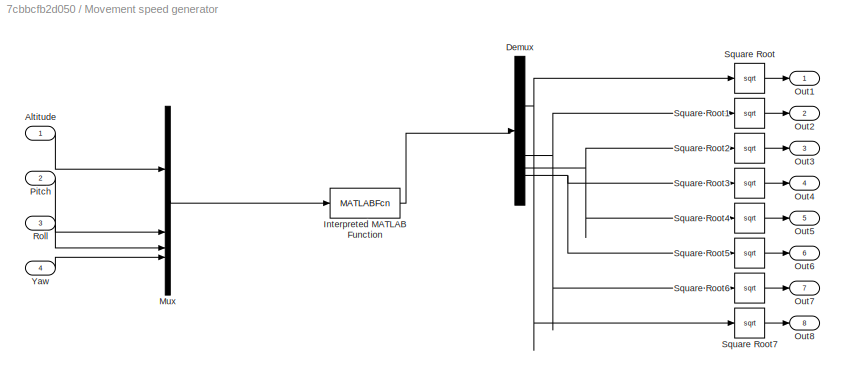
BLOCK [SubSystem] Movement speed generator
BLOCK [Inport] Movement speed generator/Altitude
BLOCK [Demux] Movement speed generator/Demux
BLOCK [MATLABFcn] Movement speed generator/Interpreted MATLAB Function
  MATLABFcn = motor_speed_generator([u(1);u(2);u(3);u(4)],k_T,k_M,l)
BLOCK [Mux] Movement speed generator/Mux
  DisplayOption = bar
BLOCK [Outport] Movement speed generator/Out1
BLOCK [Outport] Movement speed generator/Out2
  Port = 2
BLOCK [Outport] Movement speed generator/Out3
  Port = 3
BLOCK [Outport] Movement speed generator/Out4
  Port = 4
BLOCK [Outport] Movement speed generator/Out5
  Port = 5
BLOCK [Outport] Movement speed generator/Out6
  Port = 6
BLOCK [Outport] Movement speed generator/Out7
  Port = 7
BLOCK [Outport] Movement speed generator/Out8
  Port = 8
BLOCK [Inport] Movement speed generator/Pitch
  Port = 2
BLOCK [Inport] Movement speed generator/Roll
  Port = 3
BLOCK [Sqrt] Movement speed generator/Square Root
BLOCK [Sqrt] Movement speed generator/Square Root1
BLOCK [Sqrt] Movement speed generator/Square Root2
BLOCK [Sqrt] Movement speed generator/Square Root3
BLOCK [Sqrt] Movement speed generator/Square Root4
BLOCK [Sqrt] Movement speed generator/Square Root5
BLOCK [Sqrt] Movement speed generator/Square Root6
BLOCK [Sqrt] Movement speed generator/Square Root7
BLOCK [Inport] Movement speed generator/Yaw
  Port = 4
BLOCK [SubSystem] Octocopter Model
  ReferencedSubsystem = octocopter_model
  X0 = [0 0 0 0 0 0 0 0 0 0 0 0]
  k_M = k_M
  k_T = k_T
  l = l
  lxx = lxx
  lyy = lyy
  lzz = lzz
  m = m
BLOCK [Reference] PS Gain  REF=fl_lib/Physical Signals/Functions/PS Gain
  SourceBlock = fl_lib/Physical Signals/Functions/PS Gain
  SourceType = PS Gain
BLOCK [Reference] PS Gain1  REF=fl_lib/Physical Signals/Functions/PS Gain
  SourceBlock = fl_lib/Physical Signals/Functions/PS Gain
  SourceType = PS Gain
BLOCK [Reference] PS Gain2  REF=fl_lib/Physical Signals/Functions/PS Gain
  SourceBlock = fl_lib/Physical Signals/Functions/PS Gain
  SourceType = PS Gain
BLOCK [Reference] PS Gain3  REF=fl_lib/Physical Signals/Functions/PS Gain
  SourceBlock = fl_lib/Physical Signals/Functions/PS Gain
  SourceType = PS Gain
BLOCK [Reference] PS Gain4  REF=fl_lib/Physical Signals/Functions/PS Gain
  SourceBlock = fl_lib/Physical Signals/Functions/PS Gain
  SourceType = PS Gain
BLOCK [Reference] PS Gain6  REF=fl_lib/Physical Signals/Functions/PS Gain
  SourceBlock = fl_lib/Physical Signals/Functions/PS Gain
  SourceType = PS Gain
BLOCK [Reference] PS Gain7  REF=fl_lib/Physical Signals/Functions/PS Gain
  SourceBlock = fl_lib/Physical Signals/Functions/PS Gain
  SourceType = PS Gain
BLOCK [Reference] PS Gain8  REF=fl_lib/Physical Signals/Functions/PS Gain
  SourceBlock = fl_lib/Physical Signals/Functions/PS Gain
  SourceType = PS Gain
BLOCK [Reference] PS-Simulink Converter  REF=nesl_utility/PS-Simulink
Converter
  SourceBlock = nesl_utility/PS-Simulink\nConverter
  SourceType = PS-Simulink\nConverter
BLOCK [Reference] PS-Simulink Converter1  REF=nesl_utility/PS-Simulink
Converter
  SourceBlock = nesl_utility/PS-Simulink\nConverter
  SourceType = PS-Simulink\nConverter
BLOCK [Reference] PS-Simulink Converter2  REF=nesl_utility/PS-Simulink
Converter
  SourceBlock = nesl_utility/PS-Simulink\nConverter
  SourceType = PS-Simulink\nConverter
BLOCK [Reference] PS-Simulink Converter3  REF=nesl_utility/PS-Simulink
Converter
  NameLocation = top
  SourceBlock = nesl_utility/PS-Simulink\nConverter
  SourceType = PS-Simulink\nConverter
BLOCK [Reference] PS-Simulink Converter4  REF=nesl_utility/PS-Simulink
Converter
  NameLocation = top
  SourceBlock = nesl_utility/PS-Simulink\nConverter
  SourceType = PS-Simulink\nConverter
BLOCK [Reference] PS-Simulink Converter5  REF=nesl_utility/PS-Simulink
Converter
  NameLocation = top
  SourceBlock = nesl_utility/PS-Simulink\nConverter
  SourceType = PS-Simulink\nConverter
BLOCK [Reference] PS-Simulink Converter6  REF=nesl_utility/PS-Simulink
Converter
  NameLocation = top
  SourceBlock = nesl_utility/PS-Simulink\nConverter
  SourceType = PS-Simulink\nConverter
BLOCK [Reference] PS-Simulink Converter7  REF=nesl_utility/PS-Simulink
Converter
  NameLocation = top
  SourceBlock = nesl_utility/PS-Simulink\nConverter
  SourceType = PS-Simulink\nConverter
BLOCK [Reference] PS-Simulink Converter8  REF=nesl_utility/PS-Simulink
Converter
  NameLocation = top
  SourceBlock = nesl_utility/PS-Simulink\nConverter
  SourceType = PS-Simulink\nConverter
BLOCK [Reference] Pitch Control  REF=slpidlib/PID Controller
  LibrarySourceBlock = simulink/Continuous/PID Controller
  SourceBlock = slpidlib/PID Controller
  SourceType = PID 1dof
BLOCK [Reference] Roll Control  REF=slpidlib/PID Controller
  LibrarySourceBlock = simulink/Continuous/PID Controller
  SourceBlock = slpidlib/PID Controller
  SourceType = PID 1dof
BLOCK [Saturate] Saturation1
  LowerLimit = -100
  UpperLimit = 100
BLOCK [Saturate] Saturation10
  LowerLimit = -100
  UpperLimit = 100
BLOCK [Saturate] Saturation2
  LowerLimit = -100
  UpperLimit = 100
BLOCK [Saturate] Saturation3
  LowerLimit = -100
  UpperLimit = 100
BLOCK [Saturate] Saturation4
  LowerLimit = -100
  UpperLimit = 100
BLOCK [Saturate] Saturation5
  LowerLimit = -100
  UpperLimit = 100
BLOCK [Saturate] Saturation6
  LowerLimit = -100
  UpperLimit = 100
BLOCK [Saturate] Saturation7
  LowerLimit = -100
  UpperLimit = 100
BLOCK [Saturate] Saturation8
  LowerLimit = -pi/4
  UpperLimit = pi/4
BLOCK [Saturate] Saturation9
  LowerLimit = -pi/4
  UpperLimit = pi/4
BLOCK [Reference] Simulink-PS Converter  REF=nesl_utility/Simulink-PS
Converter
  SourceBlock = nesl_utility/Simulink-PS\nConverter
  SourceType = Simulink-PS\nConverter
BLOCK [Reference] Simulink-PS Converter1  REF=nesl_utility/Simulink-PS
Converter
  SourceBlock = nesl_utility/Simulink-PS\nConverter
  SourceType = Simulink-PS\nConverter
BLOCK [Reference] Simulink-PS Converter2  REF=nesl_utility/Simulink-PS
Converter
  SourceBlock = nesl_utility/Simulink-PS\nConverter
  SourceType = Simulink-PS\nConverter
BLOCK [Reference] Simulink-PS Converter3  REF=nesl_utility/Simulink-PS
Converter
  SourceBlock = nesl_utility/Simulink-PS\nConverter
  SourceType = Simulink-PS\nConverter
BLOCK [Reference] Simulink-PS Converter4  REF=nesl_utility/Simulink-PS
Converter
  SourceBlock = nesl_utility/Simulink-PS\nConverter
  SourceType = Simulink-PS\nConverter
BLOCK [Reference] Simulink-PS Converter5  REF=nesl_utility/Simulink-PS
Converter
  SourceBlock = nesl_utility/Simulink-PS\nConverter
  SourceType = Simulink-PS\nConverter
BLOCK [Reference] Simulink-PS Converter6  REF=nesl_utility/Simulink-PS
Converter
  SourceBlock = nesl_utility/Simulink-PS\nConverter
  SourceType = Simulink-PS\nConverter
BLOCK [Reference] Simulink-PS Converter7  REF=nesl_utility/Simulink-PS
Converter
  SourceBlock = nesl_utility/Simulink-PS\nConverter
  SourceType = Simulink-PS\nConverter
BLOCK [Reference] Solver Configuration  REF=nesl_utility/Solver
Configuration
  SourceBlock = nesl_utility/Solver\nConfiguration
  SourceType = Solver\nConfiguration
BLOCK [Sum] Sum1
  Inputs = -+|
BLOCK [Sum] Sum2
  Inputs = |+-
  NameLocation = top
BLOCK [Sum] Sum3
  Inputs = -+|
BLOCK [Sum] Sum4
  Inputs = |+-
  NameLocation = top
BLOCK [Sum] Sum5
  Inputs = |+-
  NameLocation = top
BLOCK [Sum] Sum6
  Inputs = -+|
BLOCK [Reference] Transform  REF=sm_lib/Frames and
Transforms/Rigid
Transform
  SourceBlock = sm_lib/Frames and\nTransforms/Rigid\nTransform
  SourceType = Rigid\nTransform
BLOCK [Reference] World  REF=sm_lib/Frames and
Transforms/World Frame
  SourceBlock = sm_lib/Frames and\nTransforms/World Frame
  SourceType = World Frame
BLOCK [Constant] X Desired
  Value = 0
BLOCK [Constant] Y Desired
  Value = 0
BLOCK [Reference] Yaw Control  REF=slpidlib/PID Controller
  LibrarySourceBlock = simulink/Continuous/PID Controller
  SourceBlock = slpidlib/PID Controller
  SourceType = PID 1dof
BLOCK [Constant] Z A
  Value = 0
BLOCK [Constant] Z Desired
  Value = 3
BLOCK [Constant] Z V
  Value = 0
LINE Altitude Control:1 -> Movement speed generator:1
LINE Arm_Motor_1/PS-Simulink Converter1:1 -> Arm_Motor_1/Z1:1
LINE Arm_Motor_1/PS-Simulink Converter2:1 -> Arm_Motor_1/Z:1
LINE Arm_Motor_3/PS-Simulink Converter1:1 -> Arm_Motor_3/Z1:1
LINE Arm_Motor_3/PS-Simulink Converter2:1 -> Arm_Motor_3/Z:1
LINE Arm_Motor_5/PS-Simulink Converter1:1 -> Arm_Motor_5/Z1:1
LINE Arm_Motor_5/PS-Simulink Converter2:1 -> Arm_Motor_5/Z:1
LINE Arm_Motor_7/PS-Simulink Converter2:1 -> Arm_Motor_7/Z:1
LINE Constant2:1 -> Sum6:2
LINE From10:1 -> Octocopter Model:2
LINE From11:1 -> Octocopter Model:3
LINE From12:1 -> Octocopter Model:4
LINE From13:1 -> Octocopter Model:5
LINE From14:1 -> Octocopter Model:6
LINE From15:1 -> Octocopter Model:7
LINE From16:1 -> Octocopter Model:8
LINE From1:1 -> Saturation10:1
LINE From2:1 -> Saturation7:1
LINE From3:1 -> Saturation6:1
LINE From4:1 -> Saturation5:1
LINE From5:1 -> Saturation4:1
LINE From6:1 -> Saturation3:1
LINE From7:1 -> Saturation2:1
LINE From8:1 -> Saturation1:1
LINE From9:1 -> Octocopter Model:1
LINE Movement speed generator/Altitude:1 -> Movement speed generator/Mux:1
NET Movement speed generator/Demux:1 -> Movement speed generator/Square Root7:1, Movement speed generator/Square Root:1
NET Movement speed generator/Demux:2 -> Movement speed generator/Square Root1:1, Movement speed generator/Square Root6:1
NET Movement speed generator/Demux:3 -> Movement speed generator/Square Root2:1, Movement speed generator/Square Root4:1
NET Movement speed generator/Demux:4 -> Movement speed generator/Square Root3:1, Movement speed generator/Square Root5:1
LINE Movement speed generator/Interpreted MATLAB Function:1 -> Movement speed generator/Demux:1
LINE Movement speed generator/Mux:1 -> Movement speed generator/Interpreted MATLAB Function:1
LINE Movement speed generator/Pitch:1 -> Movement speed generator/Mux:2
LINE Movement speed generator/Roll:1 -> Movement speed generator/Mux:3
LINE Movement speed generator/Square Root1:1 -> Movement speed generator/Out2:1
LINE Movement speed generator/Square Root2:1 -> Movement speed generator/Out3:1
LINE Movement speed generator/Square Root3:1 -> Movement speed generator/Out4:1
LINE Movement speed generator/Square Root4:1 -> Movement speed generator/Out5:1
LINE Movement speed generator/Square Root5:1 -> Movement speed generator/Out6:1
LINE Movement speed generator/Square Root6:1 -> Movement speed generator/Out7:1
LINE Movement speed generator/Square Root7:1 -> Movement speed generator/Out8:1
LINE Movement speed generator/Square Root:1 -> Movement speed generator/Out1:1
LINE Movement speed generator/Yaw:1 -> Movement speed generator/Mux:4
LINE Movement speed generator:1 -> Goto:1
LINE Movement speed generator:2 -> Goto1:1
LINE Movement speed generator:3 -> Goto2:1
LINE Movement speed generator:4 -> Goto3:1
LINE Movement speed generator:5 -> Goto4:1
LINE Movement speed generator:6 -> Goto5:1
LINE Movement speed generator:7 -> Goto6:1
LINE Movement speed generator:8 -> Goto7:1
LINE Octocopter Model:3 -> Altitude Control:4
LINE Octocopter Model:6 -> Altitude Control:5
LINE Octocopter Model:7 -> Sum1:1
LINE Octocopter Model:8 -> Sum3:1
LINE Octocopter Model:9 -> Sum6:1
LINE PS-Simulink Converter3:1 -> Sum4:1
LINE PS-Simulink Converter4:1 -> Sum5:1
LINE PS-Simulink Converter5:1 -> Sum4:2
LINE PS-Simulink Converter6:1 -> Sum5:2
LINE PS-Simulink Converter7:1 -> Sum2:2
LINE PS-Simulink Converter8:1 -> Sum2:1
LINE Pitch Control:1 -> Movement speed generator:2
LINE Roll Control:1 -> Movement speed generator:3
LINE Saturation10:1 -> Simulink-PS Converter5:1
LINE Saturation1:1 -> Simulink-PS Converter3:1
LINE Saturation2:1 -> Simulink-PS Converter4:1
LINE Saturation3:1 -> Simulink-PS Converter2:1
LINE Saturation4:1 -> Simulink-PS Converter7:1
LINE Saturation5:1 -> Simulink-PS Converter1:1
LINE Saturation6:1 -> Simulink-PS Converter6:1
LINE Saturation7:1 -> Simulink-PS Converter:1
LINE Saturation8:1 -> Sum1:2
LINE Saturation9:1 -> Sum3:2
LINE Sum1:1 -> Pitch Control:1
LINE Sum3:1 -> Roll Control:1
LINE Sum4:1 -> Display:1
LINE Sum5:1 -> Display1:1
LINE Sum6:1 -> Yaw Control:1
LINE Yaw Control:1 -> Movement speed generator:4
LINE Z A:1 -> Altitude Control:3
LINE Z Desired:1 -> Altitude Control:1
LINE Z V:1 -> Altitude Control:2
PNET net1: 6-DOF Joint:LConn1 -- Brick Solid:RConn1 -- MechanismConfiguration:RConn1 -- Solver Configuration:RConn1 -- World:RConn1
PLINE 6-DOF Joint:RConn1 -- Transform:LConn1
PLINE 6-DOF Joint:RConn2 -- PS-Simulink Converter2:LConn1
PLINE 6-DOF Joint:RConn3 -- PS-Simulink Converter1:LConn1
PLINE 6-DOF Joint:RConn4 -- PS-Simulink Converter:LConn1
PLINE Arm_Motor_1/Arm_1_RIGID/F1:RConn1 -- Arm_Motor_1/Arm_1_RIGID/Transform1:RConn1
PNET net2: Arm_Motor_1/Arm_1_RIGID/F2:RConn1 -- Arm_Motor_1/Arm_1_RIGID/ReferenceFrame:RConn1 -- Arm_Motor_1/Arm_1_RIGID/Solid:RConn1 -- Arm_Motor_1/Arm_1_RIGID/Transform1:LConn1 -- Arm_Motor_1/Arm_1_RIGID/Transform:LConn1
PLINE Arm_Motor_1/Arm_1_RIGID/F:RConn1 -- Arm_Motor_1/Arm_1_RIGID/Transform:RConn1
PLINE Arm_Motor_1/Arm_1_RIGID:LConn1 -- Arm_Motor_1/Transform:RConn1
PLINE Arm_Motor_1/Arm_1_RIGID:LConn2 -- Arm_Motor_1/F:RConn1
PLINE Arm_Motor_1/Arm_1_RIGID:RConn1 -- Arm_Motor_1/Motor_1_RIGID:LConn1
PNET net3: Arm_Motor_1/Blade:LConn1 -- Arm_Motor_1/Motor_1_RIGID:RConn1 -- Arm_Motor_1/Transform Sensor:LConn1
PNET net4: Arm_Motor_1/Blade:LConn2 -- Arm_Motor_1/PS Gain1:LConn1 -- Arm_Motor_1/PS Gain2:RConn1 -- Arm_Motor_1/PS Gain:LConn1
PNET net5: Arm_Motor_1/Blade:RConn1 -- Arm_Motor_1/Blade_1_RIGID:LConn1 -- Arm_Motor_1/External Force and Torque:RConn1
PLINE Arm_Motor_1/Blade_1_RIGID/F:RConn1 -- Arm_Motor_1/Blade_1_RIGID/Transform:RConn1
PNET net6: Arm_Motor_1/Blade_1_RIGID/ReferenceFrame:RConn1 -- Arm_Motor_1/Blade_1_RIGID/Solid:RConn1 -- Arm_Motor_1/Blade_1_RIGID/Transform:LConn1
PLINE Arm_Motor_1/External Force and Torque:LConn1 -- Arm_Motor_1/PS Gain:RConn1
PLINE Arm_Motor_1/External Force and Torque:LConn2 -- Arm_Motor_1/PS Gain1:RConn1
PLINE Arm_Motor_1/Motor_1_RIGID/F1:RConn1 -- Arm_Motor_1/Motor_1_RIGID/Transform1:RConn1
PLINE Arm_Motor_1/Motor_1_RIGID/F:RConn1 -- Arm_Motor_1/Motor_1_RIGID/Transform:RConn1
PNET net7: Arm_Motor_1/Motor_1_RIGID/ReferenceFrame:RConn1 -- Arm_Motor_1/Motor_1_RIGID/Solid:RConn1 -- Arm_Motor_1/Motor_1_RIGID/Transform1:LConn1 -- Arm_Motor_1/Motor_1_RIGID/Transform:LConn1
PLINE Arm_Motor_1/PS Gain2:LConn1 -- Arm_Motor_1/T:RConn1
PNET net8: Arm_Motor_1/PS-Simulink Converter1:LConn1 -- Arm_Motor_1/Transform Sensor:RConn2 -- Arm_Motor_1/y:RConn1
PNET net9: Arm_Motor_1/PS-Simulink Converter2:LConn1 -- Arm_Motor_1/Transform Sensor:RConn3 -- Arm_Motor_1/z:RConn1
PLINE Arm_Motor_1/ReferenceFrame:RConn1 -- Arm_Motor_1/Transform:LConn1
PLINE Arm_Motor_1/Transform Sensor:RConn1 -- Arm_Motor_1/World Frame:RConn1
PLINE Arm_Motor_1:LConn1 -- Base_1_RIGID:RConn1
PLINE Arm_Motor_1:LConn2 -- PS Gain6:RConn1
PLINE Arm_Motor_1:LConn3 -- PS-Simulink Converter3:LConn1
PLINE Arm_Motor_1:LConn4 -- PS-Simulink Converter8:LConn1
PLINE Arm_Motor_2/Arm_1_RIGID/F1:RConn1 -- Arm_Motor_2/Arm_1_RIGID/Transform1:RConn1
PNET net10: Arm_Motor_2/Arm_1_RIGID/F2:RConn1 -- Arm_Motor_2/Arm_1_RIGID/ReferenceFrame:RConn1 -- Arm_Motor_2/Arm_1_RIGID/Solid:RConn1 -- Arm_Motor_2/Arm_1_RIGID/Transform1:LConn1 -- Arm_Motor_2/Arm_1_RIGID/Transform:LConn1
PLINE Arm_Motor_2/Arm_1_RIGID/F:RConn1 -- Arm_Motor_2/Arm_1_RIGID/Transform:RConn1
PLINE Arm_Motor_2/Arm_1_RIGID:LConn1 -- Arm_Motor_2/Transform:RConn1
PLINE Arm_Motor_2/Arm_1_RIGID:LConn2 -- Arm_Motor_2/F:RConn1
PLINE Arm_Motor_2/Arm_1_RIGID:RConn1 -- Arm_Motor_2/Motor_1_RIGID:LConn1
PLINE Arm_Motor_2/Blade:LConn1 -- Arm_Motor_2/Motor_1_RIGID:RConn1
PNET net11: Arm_Motor_2/Blade:LConn2 -- Arm_Motor_2/PS Gain1:LConn1 -- Arm_Motor_2/PS Gain2:RConn1 -- Arm_Motor_2/PS Gain:LConn1
PNET net12: Arm_Motor_2/Blade:RConn1 -- Arm_Motor_2/Blade_1_RIGID:LConn1 -- Arm_Motor_2/External Force and Torque:RConn1
PLINE Arm_Motor_2/Blade_1_RIGID/F:RConn1 -- Arm_Motor_2/Blade_1_RIGID/Transform:RConn1
PNET net13: Arm_Motor_2/Blade_1_RIGID/ReferenceFrame:RConn1 -- Arm_Motor_2/Blade_1_RIGID/Solid:RConn1 -- Arm_Motor_2/Blade_1_RIGID/Transform:LConn1
PLINE Arm_Motor_2/External Force and Torque:LConn1 -- Arm_Motor_2/PS Gain:RConn1
PLINE Arm_Motor_2/External Force and Torque:LConn2 -- Arm_Motor_2/PS Gain1:RConn1
PLINE Arm_Motor_2/Motor_1_RIGID/F1:RConn1 -- Arm_Motor_2/Motor_1_RIGID/Transform1:RConn1
PLINE Arm_Motor_2/Motor_1_RIGID/F:RConn1 -- Arm_Motor_2/Motor_1_RIGID/Transform:RConn1
PNET net14: Arm_Motor_2/Motor_1_RIGID/ReferenceFrame:RConn1 -- Arm_Motor_2/Motor_1_RIGID/Solid:RConn1 -- Arm_Motor_2/Motor_1_RIGID/Transform1:LConn1 -- Arm_Motor_2/Motor_1_RIGID/Transform:LConn1
PLINE Arm_Motor_2/PS Gain2:LConn1 -- Arm_Motor_2/T:RConn1
PLINE Arm_Motor_2/ReferenceFrame:RConn1 -- Arm_Motor_2/Transform:LConn1
PLINE Arm_Motor_2:LConn1 -- Base_1_RIGID:RConn2
PLINE Arm_Motor_2:LConn2 -- PS Gain:RConn1
PLINE Arm_Motor_3/Arm_1_RIGID/F1:RConn1 -- Arm_Motor_3/Arm_1_RIGID/Transform1:RConn1
PNET net15: Arm_Motor_3/Arm_1_RIGID/F2:RConn1 -- Arm_Motor_3/Arm_1_RIGID/ReferenceFrame:RConn1 -- Arm_Motor_3/Arm_1_RIGID/Solid:RConn1 -- Arm_Motor_3/Arm_1_RIGID/Transform1:LConn1 -- Arm_Motor_3/Arm_1_RIGID/Transform:LConn1
PLINE Arm_Motor_3/Arm_1_RIGID/F:RConn1 -- Arm_Motor_3/Arm_1_RIGID/Transform:RConn1
PLINE Arm_Motor_3/Arm_1_RIGID:LConn1 -- Arm_Motor_3/Transform:RConn1
PLINE Arm_Motor_3/Arm_1_RIGID:LConn2 -- Arm_Motor_3/F:RConn1
PLINE Arm_Motor_3/Arm_1_RIGID:RConn1 -- Arm_Motor_3/Motor_1_RIGID:LConn1
PNET net16: Arm_Motor_3/Blade:LConn1 -- Arm_Motor_3/Motor_1_RIGID:RConn1 -- Arm_Motor_3/Transform Sensor:LConn1
PNET net17: Arm_Motor_3/Blade:LConn2 -- Arm_Motor_3/PS Gain1:LConn1 -- Arm_Motor_3/PS Gain2:RConn1 -- Arm_Motor_3/PS Gain:LConn1
PNET net18: Arm_Motor_3/Blade:RConn1 -- Arm_Motor_3/Blade_1_RIGID:LConn1 -- Arm_Motor_3/External Force and Torque:RConn1
PLINE Arm_Motor_3/Blade_1_RIGID/F:RConn1 -- Arm_Motor_3/Blade_1_RIGID/Transform:RConn1
PNET net19: Arm_Motor_3/Blade_1_RIGID/ReferenceFrame:RConn1 -- Arm_Motor_3/Blade_1_RIGID/Solid:RConn1 -- Arm_Motor_3/Blade_1_RIGID/Transform:LConn1
PLINE Arm_Motor_3/External Force and Torque:LConn1 -- Arm_Motor_3/PS Gain:RConn1
PLINE Arm_Motor_3/External Force and Torque:LConn2 -- Arm_Motor_3/PS Gain1:RConn1
PLINE Arm_Motor_3/Motor_1_RIGID/F1:RConn1 -- Arm_Motor_3/Motor_1_RIGID/Transform1:RConn1
PLINE Arm_Motor_3/Motor_1_RIGID/F:RConn1 -- Arm_Motor_3/Motor_1_RIGID/Transform:RConn1
PNET net20: Arm_Motor_3/Motor_1_RIGID/ReferenceFrame:RConn1 -- Arm_Motor_3/Motor_1_RIGID/Solid:RConn1 -- Arm_Motor_3/Motor_1_RIGID/Transform1:LConn1 -- Arm_Motor_3/Motor_1_RIGID/Transform:LConn1
PLINE Arm_Motor_3/PS Gain2:LConn1 -- Arm_Motor_3/T:RConn1
PNET net21: Arm_Motor_3/PS-Simulink Converter1:LConn1 -- Arm_Motor_3/Transform Sensor:RConn2 -- Arm_Motor_3/y:RConn1
PNET net22: Arm_Motor_3/PS-Simulink Converter2:LConn1 -- Arm_Motor_3/Transform Sensor:RConn3 -- Arm_Motor_3/z:RConn1
PLINE Arm_Motor_3/ReferenceFrame:RConn1 -- Arm_Motor_3/Transform:LConn1
PLINE Arm_Motor_3/Transform Sensor:RConn1 -- Arm_Motor_3/World Frame:RConn1
PLINE Arm_Motor_3:LConn1 -- Base_1_RIGID:RConn3
PLINE Arm_Motor_3:LConn2 -- PS Gain7:RConn1
PLINE Arm_Motor_3:LConn3 -- PS-Simulink Converter4:LConn1
PLINE Arm_Motor_4/Arm_1_RIGID/F1:RConn1 -- Arm_Motor_4/Arm_1_RIGID/Transform1:RConn1
PNET net23: Arm_Motor_4/Arm_1_RIGID/F2:RConn1 -- Arm_Motor_4/Arm_1_RIGID/ReferenceFrame:RConn1 -- Arm_Motor_4/Arm_1_RIGID/Solid:RConn1 -- Arm_Motor_4/Arm_1_RIGID/Transform1:LConn1 -- Arm_Motor_4/Arm_1_RIGID/Transform:LConn1
PLINE Arm_Motor_4/Arm_1_RIGID/F:RConn1 -- Arm_Motor_4/Arm_1_RIGID/Transform:RConn1
PLINE Arm_Motor_4/Arm_1_RIGID:LConn1 -- Arm_Motor_4/Transform:RConn1
PLINE Arm_Motor_4/Arm_1_RIGID:LConn2 -- Arm_Motor_4/F:RConn1
PLINE Arm_Motor_4/Arm_1_RIGID:RConn1 -- Arm_Motor_4/Motor_1_RIGID:LConn1
PLINE Arm_Motor_4/Blade:LConn1 -- Arm_Motor_4/Motor_1_RIGID:RConn1
PNET net24: Arm_Motor_4/Blade:LConn2 -- Arm_Motor_4/PS Gain1:LConn1 -- Arm_Motor_4/PS Gain2:RConn1 -- Arm_Motor_4/PS Gain:LConn1
PNET net25: Arm_Motor_4/Blade:RConn1 -- Arm_Motor_4/Blade_1_RIGID:LConn1 -- Arm_Motor_4/External Force and Torque:RConn1
PLINE Arm_Motor_4/Blade_1_RIGID/F:RConn1 -- Arm_Motor_4/Blade_1_RIGID/Transform:RConn1
PNET net26: Arm_Motor_4/Blade_1_RIGID/ReferenceFrame:RConn1 -- Arm_Motor_4/Blade_1_RIGID/Solid:RConn1 -- Arm_Motor_4/Blade_1_RIGID/Transform:LConn1
PLINE Arm_Motor_4/External Force and Torque:LConn1 -- Arm_Motor_4/PS Gain:RConn1
PLINE Arm_Motor_4/External Force and Torque:LConn2 -- Arm_Motor_4/PS Gain1:RConn1
PLINE Arm_Motor_4/Motor_1_RIGID/F1:RConn1 -- Arm_Motor_4/Motor_1_RIGID/Transform1:RConn1
PLINE Arm_Motor_4/Motor_1_RIGID/F:RConn1 -- Arm_Motor_4/Motor_1_RIGID/Transform:RConn1
PNET net27: Arm_Motor_4/Motor_1_RIGID/ReferenceFrame:RConn1 -- Arm_Motor_4/Motor_1_RIGID/Solid:RConn1 -- Arm_Motor_4/Motor_1_RIGID/Transform1:LConn1 -- Arm_Motor_4/Motor_1_RIGID/Transform:LConn1
PLINE Arm_Motor_4/PS Gain2:LConn1 -- Arm_Motor_4/T:RConn1
PLINE Arm_Motor_4/ReferenceFrame:RConn1 -- Arm_Motor_4/Transform:LConn1
PLINE Arm_Motor_4:LConn1 -- Base_1_RIGID:RConn4
PLINE Arm_Motor_4:LConn2 -- PS Gain1:RConn1
PLINE Arm_Motor_5/Arm_1_RIGID/F1:RConn1 -- Arm_Motor_5/Arm_1_RIGID/Transform1:RConn1
PNET net28: Arm_Motor_5/Arm_1_RIGID/F2:RConn1 -- Arm_Motor_5/Arm_1_RIGID/ReferenceFrame:RConn1 -- Arm_Motor_5/Arm_1_RIGID/Solid:RConn1 -- Arm_Motor_5/Arm_1_RIGID/Transform1:LConn1 -- Arm_Motor_5/Arm_1_RIGID/Transform:LConn1
PLINE Arm_Motor_5/Arm_1_RIGID/F:RConn1 -- Arm_Motor_5/Arm_1_RIGID/Transform:RConn1
PLINE Arm_Motor_5/Arm_1_RIGID:LConn1 -- Arm_Motor_5/Transform:RConn1
PLINE Arm_Motor_5/Arm_1_RIGID:LConn2 -- Arm_Motor_5/F:RConn1
PLINE Arm_Motor_5/Arm_1_RIGID:RConn1 -- Arm_Motor_5/Motor_1_RIGID:LConn1
PNET net29: Arm_Motor_5/Blade:LConn1 -- Arm_Motor_5/Motor_1_RIGID:RConn1 -- Arm_Motor_5/Transform Sensor:LConn1
PNET net30: Arm_Motor_5/Blade:LConn2 -- Arm_Motor_5/PS Gain1:LConn1 -- Arm_Motor_5/PS Gain2:RConn1 -- Arm_Motor_5/PS Gain:LConn1
PNET net31: Arm_Motor_5/Blade:RConn1 -- Arm_Motor_5/Blade_1_RIGID:LConn1 -- Arm_Motor_5/External Force and Torque:RConn1
PLINE Arm_Motor_5/Blade_1_RIGID/F:RConn1 -- Arm_Motor_5/Blade_1_RIGID/Transform:RConn1
PNET net32: Arm_Motor_5/Blade_1_RIGID/ReferenceFrame:RConn1 -- Arm_Motor_5/Blade_1_RIGID/Solid:RConn1 -- Arm_Motor_5/Blade_1_RIGID/Transform:LConn1
PLINE Arm_Motor_5/External Force and Torque:LConn1 -- Arm_Motor_5/PS Gain:RConn1
PLINE Arm_Motor_5/External Force and Torque:LConn2 -- Arm_Motor_5/PS Gain1:RConn1
PLINE Arm_Motor_5/Motor_1_RIGID/F1:RConn1 -- Arm_Motor_5/Motor_1_RIGID/Transform1:RConn1
PLINE Arm_Motor_5/Motor_1_RIGID/F:RConn1 -- Arm_Motor_5/Motor_1_RIGID/Transform:RConn1
PNET net33: Arm_Motor_5/Motor_1_RIGID/ReferenceFrame:RConn1 -- Arm_Motor_5/Motor_1_RIGID/Solid:RConn1 -- Arm_Motor_5/Motor_1_RIGID/Transform1:LConn1 -- Arm_Motor_5/Motor_1_RIGID/Transform:LConn1
PLINE Arm_Motor_5/PS Gain2:LConn1 -- Arm_Motor_5/T:RConn1
PNET net34: Arm_Motor_5/PS-Simulink Converter1:LConn1 -- Arm_Motor_5/Transform Sensor:RConn2 -- Arm_Motor_5/y:RConn1
PNET net35: Arm_Motor_5/PS-Simulink Converter2:LConn1 -- Arm_Motor_5/Transform Sensor:RConn3 -- Arm_Motor_5/z:RConn1
PLINE Arm_Motor_5/ReferenceFrame:RConn1 -- Arm_Motor_5/Transform:LConn1
PLINE Arm_Motor_5/Transform Sensor:RConn1 -- Arm_Motor_5/World Frame:RConn1
PLINE Arm_Motor_5:LConn1 -- Base_1_RIGID:RConn5
PLINE Arm_Motor_5:LConn2 -- PS Gain8:RConn1
PLINE Arm_Motor_5:LConn3 -- PS-Simulink Converter5:LConn1
PLINE Arm_Motor_5:LConn4 -- PS-Simulink Converter7:LConn1
PLINE Arm_Motor_6/Arm_1_RIGID/F1:RConn1 -- Arm_Motor_6/Arm_1_RIGID/Transform1:RConn1
PNET net36: Arm_Motor_6/Arm_1_RIGID/F2:RConn1 -- Arm_Motor_6/Arm_1_RIGID/ReferenceFrame:RConn1 -- Arm_Motor_6/Arm_1_RIGID/Solid:RConn1 -- Arm_Motor_6/Arm_1_RIGID/Transform1:LConn1 -- Arm_Motor_6/Arm_1_RIGID/Transform:LConn1
PLINE Arm_Motor_6/Arm_1_RIGID/F:RConn1 -- Arm_Motor_6/Arm_1_RIGID/Transform:RConn1
PLINE Arm_Motor_6/Arm_1_RIGID:LConn1 -- Arm_Motor_6/Transform:RConn1
PLINE Arm_Motor_6/Arm_1_RIGID:LConn2 -- Arm_Motor_6/F:RConn1
PLINE Arm_Motor_6/Arm_1_RIGID:RConn1 -- Arm_Motor_6/Motor_1_RIGID:LConn1
PLINE Arm_Motor_6/Blade:LConn1 -- Arm_Motor_6/Motor_1_RIGID:RConn1
PNET net37: Arm_Motor_6/Blade:LConn2 -- Arm_Motor_6/PS Gain1:LConn1 -- Arm_Motor_6/PS Gain2:RConn1 -- Arm_Motor_6/PS Gain:LConn1
PNET net38: Arm_Motor_6/Blade:RConn1 -- Arm_Motor_6/Blade_1_RIGID:LConn1 -- Arm_Motor_6/External Force and Torque:RConn1
PLINE Arm_Motor_6/Blade_1_RIGID/F:RConn1 -- Arm_Motor_6/Blade_1_RIGID/Transform:RConn1
PNET net39: Arm_Motor_6/Blade_1_RIGID/ReferenceFrame:RConn1 -- Arm_Motor_6/Blade_1_RIGID/Solid:RConn1 -- Arm_Motor_6/Blade_1_RIGID/Transform:LConn1
PLINE Arm_Motor_6/External Force and Torque:LConn1 -- Arm_Motor_6/PS Gain:RConn1
PLINE Arm_Motor_6/External Force and Torque:LConn2 -- Arm_Motor_6/PS Gain1:RConn1
PLINE Arm_Motor_6/Motor_1_RIGID/F1:RConn1 -- Arm_Motor_6/Motor_1_RIGID/Transform1:RConn1
PLINE Arm_Motor_6/Motor_1_RIGID/F:RConn1 -- Arm_Motor_6/Motor_1_RIGID/Transform:RConn1
PNET net40: Arm_Motor_6/Motor_1_RIGID/ReferenceFrame:RConn1 -- Arm_Motor_6/Motor_1_RIGID/Solid:RConn1 -- Arm_Motor_6/Motor_1_RIGID/Transform1:LConn1 -- Arm_Motor_6/Motor_1_RIGID/Transform:LConn1
PLINE Arm_Motor_6/PS Gain2:LConn1 -- Arm_Motor_6/T:RConn1
PLINE Arm_Motor_6/ReferenceFrame:RConn1 -- Arm_Motor_6/Transform:LConn1
PLINE Arm_Motor_6:LConn1 -- Base_1_RIGID:RConn6
PLINE Arm_Motor_6:LConn2 -- PS Gain2:RConn1
PLINE Arm_Motor_7/Arm_1_RIGID/F1:RConn1 -- Arm_Motor_7/Arm_1_RIGID/Transform1:RConn1
PNET net41: Arm_Motor_7/Arm_1_RIGID/F2:RConn1 -- Arm_Motor_7/Arm_1_RIGID/ReferenceFrame:RConn1 -- Arm_Motor_7/Arm_1_RIGID/Solid:RConn1 -- Arm_Motor_7/Arm_1_RIGID/Transform1:LConn1 -- Arm_Motor_7/Arm_1_RIGID/Transform:LConn1
PLINE Arm_Motor_7/Arm_1_RIGID/F:RConn1 -- Arm_Motor_7/Arm_1_RIGID/Transform:RConn1
PLINE Arm_Motor_7/Arm_1_RIGID:LConn1 -- Arm_Motor_7/Transform:RConn1
PLINE Arm_Motor_7/Arm_1_RIGID:LConn2 -- Arm_Motor_7/F:RConn1
PLINE Arm_Motor_7/Arm_1_RIGID:RConn1 -- Arm_Motor_7/Motor_1_RIGID:LConn1
PNET net42: Arm_Motor_7/Blade:LConn1 -- Arm_Motor_7/Motor_1_RIGID:RConn1 -- Arm_Motor_7/Transform Sensor:LConn1
PNET net43: Arm_Motor_7/Blade:LConn2 -- Arm_Motor_7/PS Gain1:LConn1 -- Arm_Motor_7/PS Gain2:RConn1 -- Arm_Motor_7/PS Gain:LConn1
PNET net44: Arm_Motor_7/Blade:RConn1 -- Arm_Motor_7/Blade_1_RIGID:LConn1 -- Arm_Motor_7/External Force and Torque:RConn1
PLINE Arm_Motor_7/Blade_1_RIGID/F:RConn1 -- Arm_Motor_7/Blade_1_RIGID/Transform:RConn1
PNET net45: Arm_Motor_7/Blade_1_RIGID/ReferenceFrame:RConn1 -- Arm_Motor_7/Blade_1_RIGID/Solid:RConn1 -- Arm_Motor_7/Blade_1_RIGID/Transform:LConn1
PLINE Arm_Motor_7/External Force and Torque:LConn1 -- Arm_Motor_7/PS Gain:RConn1
PLINE Arm_Motor_7/External Force and Torque:LConn2 -- Arm_Motor_7/PS Gain1:RConn1
PLINE Arm_Motor_7/Motor_1_RIGID/F1:RConn1 -- Arm_Motor_7/Motor_1_RIGID/Transform1:RConn1
PLINE Arm_Motor_7/Motor_1_RIGID/F:RConn1 -- Arm_Motor_7/Motor_1_RIGID/Transform:RConn1
PNET net46: Arm_Motor_7/Motor_1_RIGID/ReferenceFrame:RConn1 -- Arm_Motor_7/Motor_1_RIGID/Solid:RConn1 -- Arm_Motor_7/Motor_1_RIGID/Transform1:LConn1 -- Arm_Motor_7/Motor_1_RIGID/Transform:LConn1
PLINE Arm_Motor_7/PS Gain2:LConn1 -- Arm_Motor_7/T:RConn1
PNET net47: Arm_Motor_7/PS-Simulink Converter2:LConn1 -- Arm_Motor_7/Transform Sensor:RConn2 -- Arm_Motor_7/z:RConn1
PLINE Arm_Motor_7/ReferenceFrame:RConn1 -- Arm_Motor_7/Transform:LConn1
PLINE Arm_Motor_7/Transform Sensor:RConn1 -- Arm_Motor_7/World Frame:RConn1
PLINE Arm_Motor_7:LConn1 -- Base_1_RIGID:RConn7
PLINE Arm_Motor_7:LConn2 -- PS Gain3:RConn1
PLINE Arm_Motor_7:LConn3 -- PS-Simulink Converter6:LConn1
PLINE Arm_Motor_8/Arm_1_RIGID/F1:RConn1 -- Arm_Motor_8/Arm_1_RIGID/Transform1:RConn1
PNET net48: Arm_Motor_8/Arm_1_RIGID/F2:RConn1 -- Arm_Motor_8/Arm_1_RIGID/ReferenceFrame:RConn1 -- Arm_Motor_8/Arm_1_RIGID/Solid:RConn1 -- Arm_Motor_8/Arm_1_RIGID/Transform1:LConn1 -- Arm_Motor_8/Arm_1_RIGID/Transform:LConn1
PLINE Arm_Motor_8/Arm_1_RIGID/F:RConn1 -- Arm_Motor_8/Arm_1_RIGID/Transform:RConn1
PLINE Arm_Motor_8/Arm_1_RIGID:LConn1 -- Arm_Motor_8/Transform:RConn1
PLINE Arm_Motor_8/Arm_1_RIGID:LConn2 -- Arm_Motor_8/F:RConn1
PLINE Arm_Motor_8/Arm_1_RIGID:RConn1 -- Arm_Motor_8/Motor_1_RIGID:LConn1
PLINE Arm_Motor_8/Blade:LConn1 -- Arm_Motor_8/Motor_1_RIGID:RConn1
PNET net49: Arm_Motor_8/Blade:LConn2 -- Arm_Motor_8/PS Gain1:LConn1 -- Arm_Motor_8/PS Gain2:RConn1 -- Arm_Motor_8/PS Gain:LConn1
PNET net50: Arm_Motor_8/Blade:RConn1 -- Arm_Motor_8/Blade_1_RIGID:LConn1 -- Arm_Motor_8/External Force and Torque:RConn1
PLINE Arm_Motor_8/Blade_1_RIGID/F:RConn1 -- Arm_Motor_8/Blade_1_RIGID/Transform:RConn1
PNET net51: Arm_Motor_8/Blade_1_RIGID/ReferenceFrame:RConn1 -- Arm_Motor_8/Blade_1_RIGID/Solid:RConn1 -- Arm_Motor_8/Blade_1_RIGID/Transform:LConn1
PLINE Arm_Motor_8/External Force and Torque:LConn1 -- Arm_Motor_8/PS Gain:RConn1
PLINE Arm_Motor_8/External Force and Torque:LConn2 -- Arm_Motor_8/PS Gain1:RConn1
PLINE Arm_Motor_8/Motor_1_RIGID/F1:RConn1 -- Arm_Motor_8/Motor_1_RIGID/Transform1:RConn1
PLINE Arm_Motor_8/Motor_1_RIGID/F:RConn1 -- Arm_Motor_8/Motor_1_RIGID/Transform:RConn1
PNET net52: Arm_Motor_8/Motor_1_RIGID/ReferenceFrame:RConn1 -- Arm_Motor_8/Motor_1_RIGID/Solid:RConn1 -- Arm_Motor_8/Motor_1_RIGID/Transform1:LConn1 -- Arm_Motor_8/Motor_1_RIGID/Transform:LConn1
PLINE Arm_Motor_8/PS Gain2:LConn1 -- Arm_Motor_8/T:RConn1
PLINE Arm_Motor_8/ReferenceFrame:RConn1 -- Arm_Motor_8/Transform:LConn1
PLINE Arm_Motor_8:LConn1 -- Base_1_RIGID:RConn8
PLINE Arm_Motor_8:LConn2 -- PS Gain4:RConn1
PLINE Base_1_RIGID/F1:RConn1 -- Base_1_RIGID/Transform4:RConn1
PLINE Base_1_RIGID/F2:RConn1 -- Base_1_RIGID/Transform5:RConn1
PLINE Base_1_RIGID/F3:RConn1 -- Base_1_RIGID/Transform6:RConn1
PLINE Base_1_RIGID/F4:RConn1 -- Base_1_RIGID/Transform3:RConn1
PLINE Base_1_RIGID/F5:RConn1 -- Base_1_RIGID/Transform:RConn1
PLINE Base_1_RIGID/F6:RConn1 -- Base_1_RIGID/Transform1:RConn1
PLINE Base_1_RIGID/F7:RConn1 -- Base_1_RIGID/Transform7:RConn1
PLINE Base_1_RIGID/F8:RConn1 -- Base_1_RIGID/Transform2:RConn1
PNET net53: Base_1_RIGID/F:RConn1 -- Base_1_RIGID/ReferenceFrame:RConn1 -- Base_1_RIGID/Solid:RConn1 -- Base_1_RIGID/Transform1:LConn1 -- Base_1_RIGID/Transform2:LConn1 -- Base_1_RIGID/Transform3:LConn1 -- Base_1_RIGID/Transform4:LConn1 -- Base_1_RIGID/Transform5:LConn1 -- Base_1_RIGID/Transform6:LConn1 -- Base_1_RIGID/Transform7:LConn1 -- Base_1_RIGID/Transform:LConn1
PLINE Base_1_RIGID:LConn1 -- Transform:RConn1
PLINE PS Gain1:LConn1 -- Simulink-PS Converter1:RConn1
PLINE PS Gain2:LConn1 -- Simulink-PS Converter2:RConn1
PLINE PS Gain3:LConn1 -- Simulink-PS Converter4:RConn1
PLINE PS Gain4:LConn1 -- Simulink-PS Converter3:RConn1
PLINE PS Gain6:LConn1 -- Simulink-PS Converter5:RConn1
PLINE PS Gain7:LConn1 -- Simulink-PS Converter6:RConn1
PLINE PS Gain8:LConn1 -- Simulink-PS Converter7:RConn1
PLINE PS Gain:LConn1 -- Simulink-PS Converter:RConn1
note: NET lines group one-source signal fan-out (src -> all destinations, sorted); 1:1 wires keep LINE; PNET lines group multi-terminal physical nets as a canonical sorted terminal list (undirected conserving connections); 2-terminal nets keep the pairwise PLINE form
